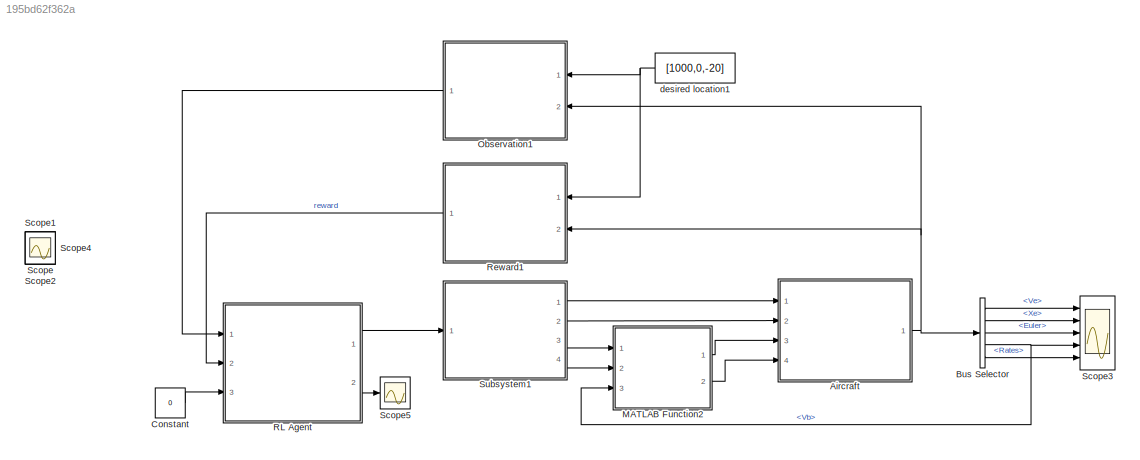
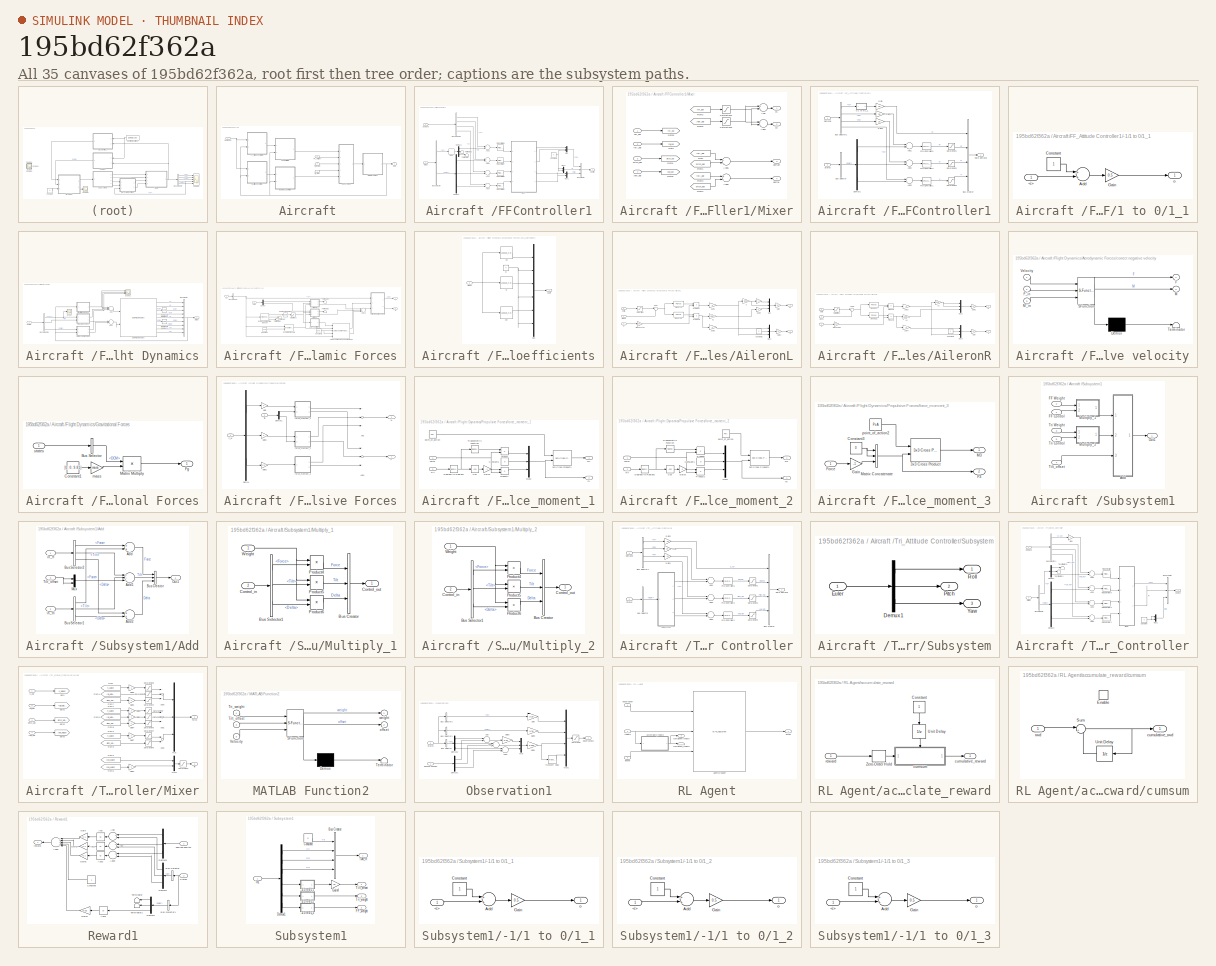
[diagram: thumbnail index - all 35 canvases of the model, root first then tree order]
MODEL slx_195bd62f362a
KIND model
CONFIG AbsTol = auto
CONFIG EnableMultiTasking = off
CONFIG FixedStep = auto
CONFIG MaxStep = auto
CONFIG MinStep = auto
CONFIG RelTol = 1e-3
CONFIG SampleTimeConstraint = Unconstrained
CONFIG Solver = VariableStepAuto
CONFIG SolverName = VariableStepAuto
CONFIG StartTime = 0.0
CONFIG StopTime = 200
BLOCK [SubSystem] Aircraft 
  Ports = [4, 1]
  RequestExecContextInheritance = off
BLOCK [Inport] Aircraft /Demands
  IconDisplay = Port number
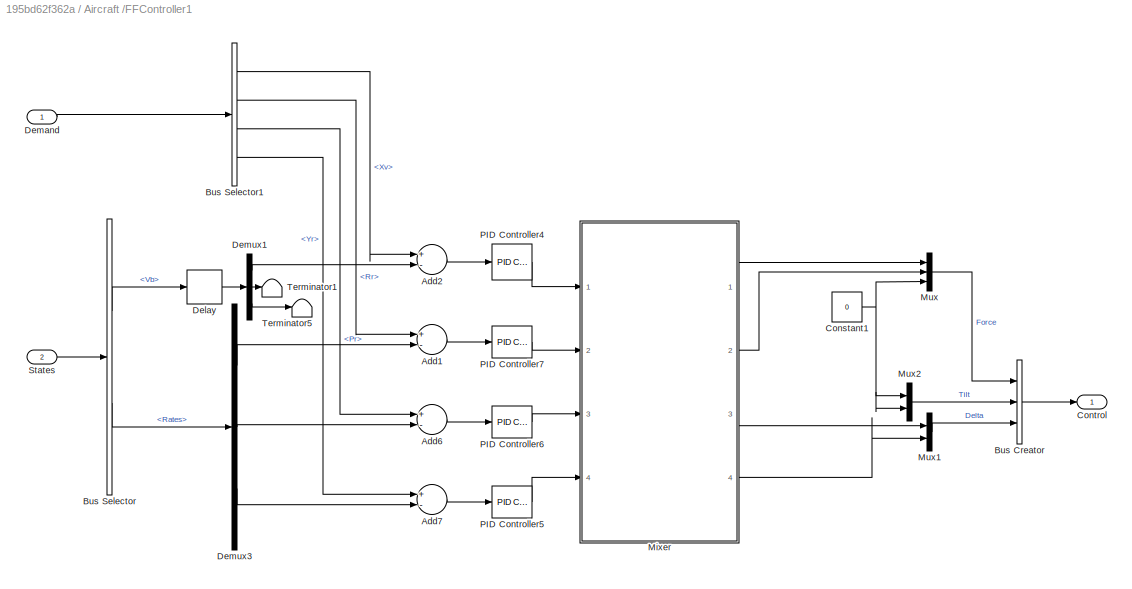
BLOCK [SubSystem] Aircraft /FFController1
  Ports = [2, 1]
  RequestExecContextInheritance = off
BLOCK [Sum] Aircraft /FFController1/Add1
  InputSameDT = off
  Inputs = +-
  OutDataTypeStr = Inherit: Inherit via internal rule
  Ports = [2, 1]
  SaturateOnIntegerOverflow = off
BLOCK [Sum] Aircraft /FFController1/Add2
  InputSameDT = off
  Inputs = +-
  OutDataTypeStr = Inherit: Inherit via internal rule
  Ports = [2, 1]
  SaturateOnIntegerOverflow = off
BLOCK [Sum] Aircraft /FFController1/Add6
  InputSameDT = off
  Inputs = +-
  OutDataTypeStr = Inherit: Inherit via internal rule
  Ports = [2, 1]
  SaturateOnIntegerOverflow = off
BLOCK [Sum] Aircraft /FFController1/Add7
  InputSameDT = off
  Inputs = +-
  OutDataTypeStr = Inherit: Inherit via internal rule
  Ports = [2, 1]
  SaturateOnIntegerOverflow = off
BLOCK [BusCreator] Aircraft /FFController1/Bus Creator
  DisplayOption = bar
  InheritFromInputs = on
  Inputs = 3
  Ports = [3, 1]
BLOCK [BusSelector] Aircraft /FFController1/Bus Selector
  OutputAsBus = off
  OutputSignals = Vb,Rates
  Ports = [1, 2]
BLOCK [BusSelector] Aircraft /FFController1/Bus Selector1
  OutputAsBus = off
  OutputSignals = Xv,Rr,Pr,Yr
  Ports = [1, 4]
BLOCK [Constant] Aircraft /FFController1/Constant1
  Value = 0
BLOCK [Outport] Aircraft /FFController1/Control
  IconDisplay = Port number
BLOCK [Delay] Aircraft /FFController1/Delay
  DelayLength = 1
  InitialCondition = 0
  InputPortMap = u0
  Ports = [1, 1]
BLOCK [Inport] Aircraft /FFController1/Demand
  IconDisplay = Port number
BLOCK [Demux] Aircraft /FFController1/Demux1
  DisplayOption = bar
  Outputs = 3
  Ports = [1, 3]
BLOCK [Demux] Aircraft /FFController1/Demux3
  DisplayOption = bar
  Outputs = 3
  Ports = [1, 3]
BLOCK [SubSystem] Aircraft /FFController1/Mixer
  Ports = [4, 4]
  RequestExecContextInheritance = off
BLOCK [Sum] Aircraft /FFController1/Mixer/Add
  InputSameDT = off
  OutDataTypeStr = Inherit: Inherit via internal rule
  Ports = [2, 1]
  SaturateOnIntegerOverflow = off
BLOCK [Sum] Aircraft /FFController1/Mixer/Add1
  InputSameDT = off
  Inputs = -+
  OutDataTypeStr = Inherit: Inherit via internal rule
  Ports = [2, 1]
  SaturateOnIntegerOverflow = off
BLOCK [Sum] Aircraft /FFController1/Mixer/Add5
  InputSameDT = off
  Inputs = --
  OutDataTypeStr = Inherit: Inherit via internal rule
  Ports = [2, 1]
  SaturateOnIntegerOverflow = off
BLOCK [Sum] Aircraft /FFController1/Mixer/Add6
  InputSameDT = off
  Inputs = +-
  OutDataTypeStr = Inherit: Inherit via internal rule
  Ports = [2, 1]
  SaturateOnIntegerOverflow = off
BLOCK [Outport] Aircraft /FFController1/Mixer/F1
  IconDisplay = Port number
BLOCK [Outport] Aircraft /FFController1/Mixer/F2
  IconDisplay = Port number
  Port = 2
BLOCK [From] Aircraft /FFController1/Mixer/From
  GotoTag = roll_adj
BLOCK [From] Aircraft /FFController1/Mixer/From1
  GotoTag = pitch_adj
BLOCK [From] Aircraft /FFController1/Mixer/From2
  GotoTag = thr_adj
BLOCK [From] Aircraft /FFController1/Mixer/From3
  GotoTag = roll_adj
BLOCK [From] Aircraft /FFController1/Mixer/From4
  GotoTag = pitch_adj
BLOCK [From] Aircraft /FFController1/Mixer/From6
  GotoTag = yaw_adj
BLOCK [Goto] Aircraft /FFController1/Mixer/Goto
  GotoTag = roll_adj
BLOCK [Goto] Aircraft /FFController1/Mixer/Goto1
  GotoTag = pitch_adj
BLOCK [Goto] Aircraft /FFController1/Mixer/Goto2
  GotoTag = yaw_adj
BLOCK [Goto] Aircraft /FFController1/Mixer/Goto3
  GotoTag = thr_adj
BLOCK [Saturate] Aircraft /FFController1/Mixer/Saturation1
  InputPortMap = u0
  LowerLimit = 0
  Ports = [1, 1]
  UpperLimit = 0.8
  ZeroCross = off
BLOCK [Saturate] Aircraft /FFController1/Mixer/Saturation2
  InputPortMap = u0
  LowerLimit = 0
  Ports = [1, 1]
  UpperLimit = 0.2
  ZeroCross = off
BLOCK [Outport] Aircraft /FFController1/Mixer/deltaL
  IconDisplay = Port number
  Port = 4
BLOCK [Outport] Aircraft /FFController1/Mixer/deltaR
  IconDisplay = Port number
  Port = 3
BLOCK [Inport] Aircraft /FFController1/Mixer/pitch_adj
  IconDisplay = Port number
  Port = 3
BLOCK [Inport] Aircraft /FFController1/Mixer/roll_adj
  IconDisplay = Port number
  Port = 2
BLOCK [Inport] Aircraft /FFController1/Mixer/vel_adj
  IconDisplay = Port number
BLOCK [Inport] Aircraft /FFController1/Mixer/yaw_adj
  IconDisplay = Port number
  Port = 4
BLOCK [Mux] Aircraft /FFController1/Mux
  DisplayOption = bar
  Inputs = 3
  Ports = [3, 1]
BLOCK [Mux] Aircraft /FFController1/Mux1
  DisplayOption = bar
  Inputs = 2
  Ports = [2, 1]
BLOCK [Mux] Aircraft /FFController1/Mux2
  DisplayOption = bar
  Inputs = 2
  Ports = [2, 1]
BLOCK [Reference] Aircraft /FFController1/PID Controller4  REF=simulink/Continuous/PID Controller
  Ports = [1, 1]
  SourceBlock = simulink/Continuous/PID Controller
  SourceProductBaseCode = SL
  SourceProductName = Simulink
  SourceType = PID 1dof
BLOCK [Reference] Aircraft /FFController1/PID Controller5  REF=simulink/Continuous/PID Controller
  Ports = [1, 1]
  SourceBlock = simulink/Continuous/PID Controller
  SourceProductBaseCode = SL
  SourceProductName = Simulink
  SourceType = PID 1dof
BLOCK [Reference] Aircraft /FFController1/PID Controller6  REF=simulink/Continuous/PID Controller
  Ports = [1, 1]
  SourceBlock = simulink/Continuous/PID Controller
  SourceProductBaseCode = SL
  SourceProductName = Simulink
  SourceType = PID 1dof
BLOCK [Reference] Aircraft /FFController1/PID Controller7  REF=simulink/Continuous/PID Controller
  Ports = [1, 1]
  SourceBlock = simulink/Continuous/PID Controller
  SourceProductBaseCode = SL
  SourceProductName = Simulink
  SourceType = PID 1dof
BLOCK [Inport] Aircraft /FFController1/States 
  IconDisplay = Port number
  Port = 2
BLOCK [Terminator] Aircraft /FFController1/Terminator1
BLOCK [Terminator] Aircraft /FFController1/Terminator5
BLOCK [SubSystem] Aircraft /FF_Attitude Controller1
  Ports = [2, 1]
  RequestExecContextInheritance = off
BLOCK [SubSystem] Aircraft /FF_Attitude Controller1/-1//1 to 0//1_1
  Ports = [1, 1]
  RequestExecContextInheritance = off
BLOCK [Inport] Aircraft /FF_Attitude Controller1/-1//1 to 0//1_1/<i>
  IconDisplay = Port number
BLOCK [Sum] Aircraft /FF_Attitude Controller1/-1//1 to 0//1_1/Add
  InputSameDT = off
  OutDataTypeStr = Inherit: Inherit via internal rule
  Ports = [2, 1]
  SaturateOnIntegerOverflow = off
BLOCK [Constant] Aircraft /FF_Attitude Controller1/-1//1 to 0//1_1/Constant
BLOCK [Gain] Aircraft /FF_Attitude Controller1/-1//1 to 0//1_1/Gain
  Gain = 0.5
  OutDataTypeStr = Inherit: Inherit via internal rule
  ParamDataTypeStr = Inherit: Inherit via internal rule
  SaturateOnIntegerOverflow = off
BLOCK [Outport] Aircraft /FF_Attitude Controller1/-1//1 to 0//1_1/o
  IconDisplay = Port number
BLOCK [Sum] Aircraft /FF_Attitude Controller1/Add1
  InputSameDT = off
  Inputs = +-
  OutDataTypeStr = Inherit: Inherit via internal rule
  Ports = [2, 1]
  SaturateOnIntegerOverflow = off
BLOCK [Sum] Aircraft /FF_Attitude Controller1/Add2
  InputSameDT = off
  Inputs = +-
  OutDataTypeStr = Inherit: Inherit via internal rule
  Ports = [2, 1]
  SaturateOnIntegerOverflow = off
BLOCK [Sum] Aircraft /FF_Attitude Controller1/Add3
  InputSameDT = off
  Inputs = +-
  OutDataTypeStr = Inherit: Inherit via internal rule
  Ports = [2, 1]
  SaturateOnIntegerOverflow = off
BLOCK [BusCreator] Aircraft /FF_Attitude Controller1/Bus Creator
  DisplayOption = bar
  InheritFromInputs = on
  Inputs = 4
  Ports = [4, 1]
BLOCK [BusSelector] Aircraft /FF_Attitude Controller1/Bus Selector
  OutputAsBus = off
  OutputSignals = Euler
  Ports = [1, 1]
BLOCK [BusSelector] Aircraft /FF_Attitude Controller1/Bus Selector1
  OutputAsBus = off
  OutputSignals = Xv,Rd,Pd,Yd
  Ports = [1, 4]
BLOCK [Inport] Aircraft /FF_Attitude Controller1/Demand 
  IconDisplay = Port number
BLOCK [Demux] Aircraft /FF_Attitude Controller1/Demux1
  DisplayOption = bar
  Outputs = 3
  Ports = [1, 3]
BLOCK [Gain] Aircraft /FF_Attitude Controller1/Gain
  Gain = 25
  OutDataTypeStr = Inherit: Inherit via internal rule
  ParamDataTypeStr = Inherit: Inherit via internal rule
  SaturateOnIntegerOverflow = off
BLOCK [Gain] Aircraft /FF_Attitude Controller1/Gain1
  Gain = 25
  OutDataTypeStr = Inherit: Inherit via internal rule
  ParamDataTypeStr = Inherit: Inherit via internal rule
  SaturateOnIntegerOverflow = off
BLOCK [Gain] Aircraft /FF_Attitude Controller1/Gain2
  Gain = 25
  OutDataTypeStr = Inherit: Inherit via internal rule
  ParamDataTypeStr = Inherit: Inherit via internal rule
  SaturateOnIntegerOverflow = off
BLOCK [Reference] Aircraft /FF_Attitude Controller1/PID Controller1  REF=simulink/Continuous/PID Controller
  Ports = [1, 1]
  SourceBlock = simulink/Continuous/PID Controller
  SourceProductBaseCode = SL
  SourceProductName = Simulink
  SourceType = PID 1dof
BLOCK [Reference] Aircraft /FF_Attitude Controller1/PID Controller3  REF=simulink/Continuous/PID Controller
  Ports = [1, 1]
  SourceBlock = simulink/Continuous/PID Controller
  SourceProductBaseCode = SL
  SourceProductName = Simulink
  SourceType = PID 1dof
BLOCK [Reference] Aircraft /FF_Attitude Controller1/PID Controller5  REF=simulink/Continuous/PID Controller
  Ports = [1, 1]
  SourceBlock = simulink/Continuous/PID Controller
  SourceProductBaseCode = SL
  SourceProductName = Simulink
  SourceType = PID 1dof
BLOCK [Outport] Aircraft /FF_Attitude Controller1/Rate Demand
  IconDisplay = Port number
BLOCK [Saturate] Aircraft /FF_Attitude Controller1/Saturation1
  InputPortMap = u0
  LinearizeAsGain = off
  LowerLimit = -25
  Ports = [1, 1]
  UpperLimit = 25
BLOCK [Saturate] Aircraft /FF_Attitude Controller1/Saturation2
  InputPortMap = u0
  LinearizeAsGain = off
  LowerLimit = -15
  Ports = [1, 1]
  UpperLimit = 15
BLOCK [Saturate] Aircraft /FF_Attitude Controller1/Saturation3
  InputPortMap = u0
  LinearizeAsGain = off
  LowerLimit = -30
  Ports = [1, 1]
  UpperLimit = 30
BLOCK [Inport] Aircraft /FF_Attitude Controller1/States 
  IconDisplay = Port number
  Port = 2
BLOCK [Inport] Aircraft /FF_weight
  IconDisplay = Port number
  Port = 2
BLOCK [SubSystem] Aircraft /Flight Dynamics
  Ports = [1, 1]
  RequestExecContextInheritance = off
BLOCK [Reference] Aircraft /Flight Dynamics/6DOF (Euler Angles)  REF=shared6dof/6DOF (Euler Angles)
  Ports = [2, 9]
  SourceBlock = shared6dof/6DOF (Euler Angles)
  SourceProductBaseCode = AE
  SourceProductName = Aerospace Blockset
  SourceType = 6DOF EoM (Body Axis)
BLOCK [Sum] Aircraft /Flight Dynamics/Add
  InputSameDT = off
  Inputs = +++
  OutDataTypeStr = Inherit: Inherit via internal rule
  Ports = [3, 1]
  SaturateOnIntegerOverflow = off
BLOCK [Sum] Aircraft /Flight Dynamics/Add1
  InputSameDT = off
  OutDataTypeStr = Inherit: Inherit via internal rule
  Ports = [2, 1]
  SaturateOnIntegerOverflow = off
BLOCK [SubSystem] Aircraft /Flight Dynamics/Aerodynamic Forces
  Ports = [2, 2]
  RequestExecContextInheritance = off
BLOCK [Sum] Aircraft /Flight Dynamics/Aerodynamic Forces/Add13
  InputSameDT = off
  Inputs = +++
  OutDataTypeStr = Inherit: Inherit via internal rule
  Ports = [3, 1]
  SaturateOnIntegerOverflow = off
BLOCK [SubSystem] Aircraft /Flight Dynamics/Aerodynamic Forces/Aero_coefficients
  Ports = [1, 1]
  RequestExecContextInheritance = off
BLOCK [Lookup_n-D] Aircraft /Flight Dynamics/Aerodynamic Forces/Aero_coefficients/Cd
  BreakpointsForDimension1 = [-22\n-20\n-18\n-16\n-14\n-12\n-10\n-8\n-6\n-4\n-2\n0\n2\n4\n6\n8\n10\n12\n14\n16\n18\n20\n22]
  InternalRulePriority = Speed
  NumberOfTableDimensions = 1
  Ports = [1, 1]
  RndMeth = Simplest
  Table = [0.392965675000000\n0.341758938000000\n0.291869622000000\n0.243198735000000\n0.201122935000000\n0.162088921000000\n0.119255102000000\n0.0879271140000000\n0.0661394560000000\n0.0508236150000000\n0.0422907190000000\n0.0388286200000000\n0.0390186100000000\n0.0428645290000000\n0.0503231290000000\n0.0617672500000000\n0.0796637510000000\n0.103830904000000\n0.130929057000000\n0.163534014000000\n0.205122935000000\n0.273406040...<+25ch>
BLOCK [Constant] Aircraft /Flight Dynamics/Aerodynamic Forces/Aero_coefficients/Cl
  Value = 0
BLOCK [Lookup_n-D] Aircraft /Flight Dynamics/Aerodynamic Forces/Aero_coefficients/Cl 
  BreakpointsForDimension1 = [-22\n-20\n-18\n-16\n-14\n-12\n-10\n-8\n-6\n-4\n-2\n0\n2\n4\n6\n8\n10\n12\n14\n16\n18\n20\n22]
  InternalRulePriority = Speed
  NumberOfTableDimensions = 1
  Ports = [1, 1]
  RndMeth = Simplest
  Table = [-1.05304747000000\n-0.939866144000000\n-0.835877820000000\n-0.772327502000000\n-0.744091351000000\n-0.678260447000000\n-0.627152575000000\n-0.541724976000000\n-0.430579689000000\n-0.309313897000000\n-0.176928086000000\n-0.0384528670000000\n0.102475219000000\n0.243855685000000\n0.381506317000000\n0.522103984000000\n0.649275996000000\n0.776705539000000\n0.874480078000000\n0.954319728000000\n1.00194617500000\n0.97672155...<+26ch>
BLOCK [Lookup_n-D] Aircraft /Flight Dynamics/Aerodynamic Forces/Aero_coefficients/Cm
  BreakpointsForDimension1 = [-22\n-20\n-18\n-16\n-14\n-12\n-10\n-8\n-6\n-4\n-2\n0\n2\n4\n6\n8\n10\n12\n14\n16\n18\n20\n22]
  InternalRulePriority = Speed
  NumberOfTableDimensions = 1
  Ports = [1, 1]
  RndMeth = Simplest
  Table = [-0.0374352130000000\n-0.0346318370000000\n-0.0299414270000000\n-0.0257262990000000\n-0.0215954230000000\n-0.0114725440000000\n0.0141471030000000\n0.0288031780000000\n0.0376529660000000\n0.0436490160000000\n0.0450585630000000\n0.0429304540000000\n0.0377977440000000\n0.0321134120000000\n0.0258494080000000\n0.0177846340000000\n0.0110621100000000\n0.00550642000000000\n0.00100000000000000\n-0.00339548100000000\n0.0115161...<+48ch>
BLOCK [Outport] Aircraft /Flight Dynamics/Aerodynamic Forces/Aero_coefficients/Coeff
  IconDisplay = Port number
BLOCK [Mux] Aircraft /Flight Dynamics/Aerodynamic Forces/Aero_coefficients/Mux
  DisplayOption = bar
  Inputs = 6
  Ports = [6, 1]
BLOCK [Inport] Aircraft /Flight Dynamics/Aerodynamic Forces/Aero_coefficients/alpha
  IconDisplay = Port number
BLOCK [Reference] Aircraft /Flight Dynamics/Aerodynamic Forces/Aerodynamic Forces and Moments   REF=aerolibadyn/Aerodynamic
Forces and Moments 
  Ports = [5, 2]
  SourceBlock = aerolibadyn/Aerodynamic\nForces and Moments
  SourceProductBaseCode = AE
  SourceProductName = Aerospace Blockset
  SourceType = Aerodynamic Forces and Moments
BLOCK [SubSystem] Aircraft /Flight Dynamics/Aerodynamic Forces/AileronL
  Ports = [3, 2]
  RequestExecContextInheritance = off
BLOCK [Gain] Aircraft /Flight Dynamics/Aerodynamic Forces/AileronL/ 
  Gain = -1
  OutDataTypeStr = Inherit: Inherit via internal rule
  ParamDataTypeStr = Inherit: Inherit via internal rule
  SaturateOnIntegerOverflow = off
BLOCK [Gain] Aircraft /Flight Dynamics/Aerodynamic Forces/AileronL/AilevonArea
  Gain = .05
  OutDataTypeStr = Inherit: Inherit via internal rule
  ParamDataTypeStr = Inherit: Inherit via internal rule
  SaturateOnIntegerOverflow = off
BLOCK [Constant] Aircraft /Flight Dynamics/Aerodynamic Forces/AileronL/Constant1
  Value = 0
BLOCK [Outport] Aircraft /Flight Dynamics/Aerodynamic Forces/AileronL/F
  IconDisplay = Port number
BLOCK [Gain] Aircraft /Flight Dynamics/Aerodynamic Forces/AileronL/Gain
  Gain = 0.5
  OutDataTypeStr = Inherit: Inherit via internal rule
  ParamDataTypeStr = Inherit: Inherit via internal rule
  SaturateOnIntegerOverflow = off
BLOCK [Gain] Aircraft /Flight Dynamics/Aerodynamic Forces/AileronL/Gain1
  Gain = 0.5
  OutDataTypeStr = Inherit: Inherit via internal rule
  ParamDataTypeStr = Inherit: Inherit via internal rule
  SaturateOnIntegerOverflow = off
BLOCK [Outport] Aircraft /Flight Dynamics/Aerodynamic Forces/AileronL/M
  IconDisplay = Port number
  Port = 2
BLOCK [Mux] Aircraft /Flight Dynamics/Aerodynamic Forces/AileronL/Mux
  DisplayOption = bar
  Inputs = 3
  Ports = [3, 1]
BLOCK [Mux] Aircraft /Flight Dynamics/Aerodynamic Forces/AileronL/Mux1
  DisplayOption = bar
  Inputs = 3
  Ports = [3, 1]
BLOCK [Product] Aircraft /Flight Dynamics/Aerodynamic Forces/AileronL/Product
  InputSameDT = off
  OutDataTypeStr = Inherit: Inherit via internal rule
  Ports = [2, 1]
  RndMeth = Floor
  SaturateOnIntegerOverflow = off
BLOCK [Product] Aircraft /Flight Dynamics/Aerodynamic Forces/AileronL/Product1
  InputSameDT = off
  OutDataTypeStr = Inherit: Inherit via internal rule
  Ports = [2, 1]
  RndMeth = Floor
  SaturateOnIntegerOverflow = off
BLOCK [Saturate] Aircraft /Flight Dynamics/Aerodynamic Forces/AileronL/Saturation
  InputPortMap = u0
  LowerLimit = -20
  Ports = [1, 1]
  UpperLimit = 20
  ZeroCross = off
BLOCK [Sum] Aircraft /Flight Dynamics/Aerodynamic Forces/AileronL/Sum
  IconShape = round
  InputSameDT = off
  Inputs = |++
  OutDataTypeStr = Inherit: Inherit via internal rule
  Ports = [2, 1]
  SaturateOnIntegerOverflow = off
BLOCK [Gain] Aircraft /Flight Dynamics/Aerodynamic Forces/AileronL/a
  Gain = .505
  OutDataTypeStr = Inherit: Inherit via internal rule
  ParamDataTypeStr = Inherit: Inherit via internal rule
  SaturateOnIntegerOverflow = off
BLOCK [Gain] Aircraft /Flight Dynamics/Aerodynamic Forces/AileronL/a1
  Gain = .505
  OutDataTypeStr = Inherit: Inherit via internal rule
  ParamDataTypeStr = Inherit: Inherit via internal rule
  SaturateOnIntegerOverflow = off
BLOCK [Inport] Aircraft /Flight Dynamics/Aerodynamic Forces/AileronL/alpha
  IconDisplay = Port number
  Port = 2
BLOCK [Polyval] Aircraft /Flight Dynamics/Aerodynamic Forces/AileronL/alpha-CD
  Coefs = [2e-5 2e-8 -5e-5 -4e-7 .0119]
BLOCK [Polyval] Aircraft /Flight Dynamics/Aerodynamic Forces/AileronL/alpha-CL
  Coefs = [0.0987 0]
BLOCK [Inport] Aircraft /Flight Dynamics/Aerodynamic Forces/AileronL/delta
  IconDisplay = Port number
BLOCK [Gain] Aircraft /Flight Dynamics/Aerodynamic Forces/AileronL/gain1
  Gain = -1
  OutDataTypeStr = Inherit: Inherit via internal rule
  ParamDataTypeStr = Inherit: Inherit via internal rule
  SaturateOnIntegerOverflow = off
BLOCK [Gain] Aircraft /Flight Dynamics/Aerodynamic Forces/AileronL/gain2
  Gain = -1
  OutDataTypeStr = Inherit: Inherit via internal rule
  ParamDataTypeStr = Inherit: Inherit via internal rule
  SaturateOnIntegerOverflow = off
BLOCK [Gain] Aircraft /Flight Dynamics/Aerodynamic Forces/AileronL/gain4
  Gain = -1
  OutDataTypeStr = Inherit: Inherit via internal rule
  ParamDataTypeStr = Inherit: Inherit via internal rule
  SaturateOnIntegerOverflow = off
BLOCK [Inport] Aircraft /Flight Dynamics/Aerodynamic Forces/AileronL/q
  IconDisplay = Port number
  Port = 3
BLOCK [SubSystem] Aircraft /Flight Dynamics/Aerodynamic Forces/AileronR
  Ports = [3, 2]
  RequestExecContextInheritance = off
BLOCK [Gain] Aircraft /Flight Dynamics/Aerodynamic Forces/AileronR/AilevonArea
  Gain = .05
  OutDataTypeStr = Inherit: Inherit via internal rule
  ParamDataTypeStr = Inherit: Inherit via internal rule
  SaturateOnIntegerOverflow = off
BLOCK [Constant] Aircraft /Flight Dynamics/Aerodynamic Forces/AileronR/Constant2
  Value = 0
BLOCK [Outport] Aircraft /Flight Dynamics/Aerodynamic Forces/AileronR/F
  IconDisplay = Port number
BLOCK [Gain] Aircraft /Flight Dynamics/Aerodynamic Forces/AileronR/Gain
  Gain = 0.5
  OutDataTypeStr = Inherit: Inherit via internal rule
  ParamDataTypeStr = Inherit: Inherit via internal rule
  SaturateOnIntegerOverflow = off
BLOCK [Gain] Aircraft /Flight Dynamics/Aerodynamic Forces/AileronR/Gain1
  Gain = 0.5
  OutDataTypeStr = Inherit: Inherit via internal rule
  ParamDataTypeStr = Inherit: Inherit via internal rule
  SaturateOnIntegerOverflow = off
BLOCK [Outport] Aircraft /Flight Dynamics/Aerodynamic Forces/AileronR/M
  IconDisplay = Port number
  Port = 2
BLOCK [Mux] Aircraft /Flight Dynamics/Aerodynamic Forces/AileronR/Mux2
  DisplayOption = bar
  Inputs = 3
  Ports = [3, 1]
BLOCK [Mux] Aircraft /Flight Dynamics/Aerodynamic Forces/AileronR/Mux3
  DisplayOption = bar
  Inputs = 3
  Ports = [3, 1]
BLOCK [Product] Aircraft /Flight Dynamics/Aerodynamic Forces/AileronR/Product2
  InputSameDT = off
  OutDataTypeStr = Inherit: Inherit via internal rule
  Ports = [2, 1]
  RndMeth = Floor
  SaturateOnIntegerOverflow = off
BLOCK [Product] Aircraft /Flight Dynamics/Aerodynamic Forces/AileronR/Product3
  InputSameDT = off
  OutDataTypeStr = Inherit: Inherit via internal rule
  Ports = [2, 1]
  RndMeth = Floor
  SaturateOnIntegerOverflow = off
BLOCK [Saturate] Aircraft /Flight Dynamics/Aerodynamic Forces/AileronR/Saturation1
  InputPortMap = u0
  LowerLimit = -20
  Ports = [1, 1]
  UpperLimit = 20
  ZeroCross = off
BLOCK [Sum] Aircraft /Flight Dynamics/Aerodynamic Forces/AileronR/Sum1
  IconShape = round
  InputSameDT = off
  Inputs = |++
  OutDataTypeStr = Inherit: Inherit via internal rule
  Ports = [2, 1]
  SaturateOnIntegerOverflow = off
BLOCK [Gain] Aircraft /Flight Dynamics/Aerodynamic Forces/AileronR/a2
  Gain = .505
  OutDataTypeStr = Inherit: Inherit via internal rule
  ParamDataTypeStr = Inherit: Inherit via internal rule
  SaturateOnIntegerOverflow = off
BLOCK [Gain] Aircraft /Flight Dynamics/Aerodynamic Forces/AileronR/a3
  Gain = .505
  OutDataTypeStr = Inherit: Inherit via internal rule
  ParamDataTypeStr = Inherit: Inherit via internal rule
  SaturateOnIntegerOverflow = off
BLOCK [Inport] Aircraft /Flight Dynamics/Aerodynamic Forces/AileronR/alpha
  IconDisplay = Port number
  Port = 2
BLOCK [Polyval] Aircraft /Flight Dynamics/Aerodynamic Forces/AileronR/alpha-CD1
  Coefs = [2e-5 2e-8 -5e-5 -4e-7 .0119]
BLOCK [Polyval] Aircraft /Flight Dynamics/Aerodynamic Forces/AileronR/alpha-CL1
  Coefs = [0.0987 0]
BLOCK [Inport] Aircraft /Flight Dynamics/Aerodynamic Forces/AileronR/delta
  IconDisplay = Port number
BLOCK [Gain] Aircraft /Flight Dynamics/Aerodynamic Forces/AileronR/gain3
  Gain = -1
  OutDataTypeStr = Inherit: Inherit via internal rule
  ParamDataTypeStr = Inherit: Inherit via internal rule
  SaturateOnIntegerOverflow = off
BLOCK [Gain] Aircraft /Flight Dynamics/Aerodynamic Forces/AileronR/gain4
  Gain = -1
  OutDataTypeStr = Inherit: Inherit via internal rule
  ParamDataTypeStr = Inherit: Inherit via internal rule
  SaturateOnIntegerOverflow = off
BLOCK [Inport] Aircraft /Flight Dynamics/Aerodynamic Forces/AileronR/q
  IconDisplay = Port number
  Port = 3
BLOCK [BusSelector] Aircraft /Flight Dynamics/Aerodynamic Forces/Bus Selector
  OutputAsBus = off
  OutputSignals = Vb
  Ports = [1, 1]
BLOCK [Constant] Aircraft /Flight Dynamics/Aerodynamic Forces/Constant
  Value = 1.225
BLOCK [Constant] Aircraft /Flight Dynamics/Aerodynamic Forces/Constant2
  Value = [0 0 0]
BLOCK [Demux] Aircraft /Flight Dynamics/Aerodynamic Forces/Demux
  DisplayOption = bar
  Outputs = 2
  Ports = [1, 2]
BLOCK [Reference] Aircraft /Flight Dynamics/Aerodynamic Forces/Dynamic Pressure  REF=aerolibasang/Dynamic Pressure
  Ports = [2, 1]
  SourceBlock = aerolibasang/Dynamic Pressure
  SourceProductBaseCode = AE
  SourceProductName = Aerospace Blockset
  SourceType = Dynamic Pressure
BLOCK [Outport] Aircraft /Flight Dynamics/Aerodynamic Forces/F
  IconDisplay = Port number
BLOCK [Reference] Aircraft /Flight Dynamics/Aerodynamic Forces/Incidence, Sideslip, & Airspeed  REF=aerolibasang/Incidence, Sideslip,
& Airspeed
  Ports = [1, 3]
  SourceBlock = aerolibasang/Incidence, Sideslip,\n& Airspeed
  SourceProductBaseCode = AE
  SourceProductName = Aerospace Blockset
  SourceType = Incidence,Sideslip,&Airspeed
BLOCK [Outport] Aircraft /Flight Dynamics/Aerodynamic Forces/M
  IconDisplay = Port number
  Port = 2
BLOCK [Reference] Aircraft /Flight Dynamics/Aerodynamic Forces/Radians to Degrees  REF=simulink_extras/Transformations/Radians
to Degrees
  Ports = [1, 1]
  SourceBlock = simulink_extras/Transformations/Radians\nto Degrees
  SourceProductBaseCode = SL
  SourceProductName = Simulink
  SourceType = RadiansToDegrees
BLOCK [Saturate] Aircraft /Flight Dynamics/Aerodynamic Forces/Saturation1
  InputPortMap = u0
  LowerLimit = -22
  Ports = [1, 1]
  UpperLimit = 22
  ZeroCross = off
BLOCK [Terminator] Aircraft /Flight Dynamics/Aerodynamic Forces/Terminator
BLOCK [Terminator] Aircraft /Flight Dynamics/Aerodynamic Forces/Terminator1
BLOCK [Terminator] Aircraft /Flight Dynamics/Aerodynamic Forces/Terminator2
BLOCK [Terminator] Aircraft /Flight Dynamics/Aerodynamic Forces/Terminator3
BLOCK [Inport] Aircraft /Flight Dynamics/Aerodynamic Forces/Vb
  IconDisplay = Port number
  Port = 2
BLOCK [SubSystem] Aircraft /Flight Dynamics/Aerodynamic Forces/correct negative velocity
  ErrorFcn = Stateflow.Translate.translate
  PermitHierarchicalResolution = ExplicitOnly
  Ports = [3, 2]
  RequestExecContextInheritance = off
  SFBlockType = MATLAB Function
  TreatAsAtomicUnit = on
BLOCK [Demux] Aircraft /Flight Dynamics/Aerodynamic Forces/correct negative velocity/ Demux 
  Outputs = 1
  Ports = [1, 1]
BLOCK [S-Function] Aircraft /Flight Dynamics/Aerodynamic Forces/correct negative velocity/ SFunction 
  EnableBusSupport = on
  FunctionName = sf_sfun
  PortCounts = [3 3]
  Ports = [3, 3]
  SFcnIsStateOwnerBlock = off
  SFunctionDeploymentMode = off
  Tag = Stateflow S-Function Transition 1
BLOCK [Terminator] Aircraft /Flight Dynamics/Aerodynamic Forces/correct negative velocity/ Terminator 
BLOCK [Outport] Aircraft /Flight Dynamics/Aerodynamic Forces/correct negative velocity/F
  IconDisplay = Port number
BLOCK [Inport] Aircraft /Flight Dynamics/Aerodynamic Forces/correct negative velocity/F_in
  IconDisplay = Port number
  Port = 2
BLOCK [Outport] Aircraft /Flight Dynamics/Aerodynamic Forces/correct negative velocity/M
  IconDisplay = Port number
  Port = 2
BLOCK [Inport] Aircraft /Flight Dynamics/Aerodynamic Forces/correct negative velocity/M_in
  IconDisplay = Port number
  Port = 3
BLOCK [Inport] Aircraft /Flight Dynamics/Aerodynamic Forces/correct negative velocity/Velocity
  IconDisplay = Port number
BLOCK [Inport] Aircraft /Flight Dynamics/Aerodynamic Forces/delta
  IconDisplay = Port number
BLOCK [BusCreator] Aircraft /Flight Dynamics/Bus Creator
  DisplayOption = bar
  InheritFromInputs = on
  Inputs = 9
  Ports = [9, 1]
BLOCK [BusSelector] Aircraft /Flight Dynamics/Bus Selector1
  OutputAsBus = off
  OutputSignals = Force,Tilt,Delta
  Ports = [1, 3]
BLOCK [Inport] Aircraft /Flight Dynamics/Control
  IconDisplay = Port number
BLOCK [SubSystem] Aircraft /Flight Dynamics/Gravitational Forces
  Ports = [1, 1]
  RequestExecContextInheritance = off
BLOCK [BusSelector] Aircraft /Flight Dynamics/Gravitational Forces/Bus Selector
  OutputAsBus = off
  OutputSignals = DCM
  Ports = [1, 1]
BLOCK [Constant] Aircraft /Flight Dynamics/Gravitational Forces/Constant1
  Value = [0; 0; 9.81]
BLOCK [Outport] Aircraft /Flight Dynamics/Gravitational Forces/Fg
  IconDisplay = Port number
BLOCK [Product] Aircraft /Flight Dynamics/Gravitational Forces/Matrix Multiply
  InputSameDT = off
  Multiplication = Matrix(*)
  OutDataTypeStr = Inherit: Inherit via internal rule
  Ports = [2, 1]
  RndMeth = Floor
  SaturateOnIntegerOverflow = off
BLOCK [Gain] Aircraft /Flight Dynamics/Gravitational Forces/mass
  Gain = mass
  OutDataTypeStr = Inherit: Inherit via internal rule
  ParamDataTypeStr = Inherit: Inherit via internal rule
  SaturateOnIntegerOverflow = off
BLOCK [Inport] Aircraft /Flight Dynamics/Gravitational Forces/states
  IconDisplay = Port number
BLOCK [SubSystem] Aircraft /Flight Dynamics/Propulsive Forces
  Ports = [2, 2]
  RequestExecContextInheritance = off
BLOCK [Sum] Aircraft /Flight Dynamics/Propulsive Forces/Add
  InputSameDT = off
  Inputs = +++
  OutDataTypeStr = Inherit: Inherit via internal rule
  Ports = [3, 1]
  SaturateOnIntegerOverflow = off
BLOCK [Sum] Aircraft /Flight Dynamics/Propulsive Forces/Add1
  InputSameDT = off
  Inputs = +++
  OutDataTypeStr = Inherit: Inherit via internal rule
  Ports = [3, 1]
  SaturateOnIntegerOverflow = off
BLOCK [Demux] Aircraft /Flight Dynamics/Propulsive Forces/Demux
  DisplayOption = bar
  Outputs = 3
  Ports = [1, 3]
BLOCK [Demux] Aircraft /Flight Dynamics/Propulsive Forces/Demux1
  DisplayOption = bar
  Outputs = 2
  Ports = [1, 2]
BLOCK [Outport] Aircraft /Flight Dynamics/Propulsive Forces/F
  IconDisplay = Port number
BLOCK [Inport] Aircraft /Flight Dynamics/Propulsive Forces/F_M 
  IconDisplay = Port number
BLOCK [Gain] Aircraft /Flight Dynamics/Propulsive Forces/Gain
  Gain = F
  OutDataTypeStr = Inherit: Inherit via internal rule
  ParamDataTypeStr = Inherit: Inherit via internal rule
  SaturateOnIntegerOverflow = off
BLOCK [Gain] Aircraft /Flight Dynamics/Propulsive Forces/Gain1
  Gain = F
  OutDataTypeStr = Inherit: Inherit via internal rule
  ParamDataTypeStr = Inherit: Inherit via internal rule
  SaturateOnIntegerOverflow = off
BLOCK [Gain] Aircraft /Flight Dynamics/Propulsive Forces/Gain2
  Gain = 2*F
  OutDataTypeStr = Inherit: Inherit via internal rule
  ParamDataTypeStr = Inherit: Inherit via internal rule
  SaturateOnIntegerOverflow = off
BLOCK [Outport] Aircraft /Flight Dynamics/Propulsive Forces/M
  IconDisplay = Port number
  Port = 2
BLOCK [Inport] Aircraft /Flight Dynamics/Propulsive Forces/Tilt
  IconDisplay = Port number
  Port = 2
BLOCK [SubSystem] Aircraft /Flight Dynamics/Propulsive Forces/force_moment_1
  Ports = [2, 2]
  RequestExecContextInheritance = off
BLOCK [Reference] Aircraft /Flight Dynamics/Propulsive Forces/force_moment_1/3x3 Cross Product1  REF=sharedutil/3x3 Cross Product
  Ports = [2, 1]
  SourceBlock = sharedutil/3x3 Cross Product
  SourceProductBaseCode = AE
  SourceProductName = Aerospace Blockset
  SourceType = CrossProduct
BLOCK [Constant] Aircraft /Flight Dynamics/Propulsive Forces/force_moment_1/Constant1
  Value = 0
BLOCK [Trigonometry] Aircraft /Flight Dynamics/Propulsive Forces/force_moment_1/Cos
  Operator = cos
  Ports = [1, 1]
BLOCK [Reference] Aircraft /Flight Dynamics/Propulsive Forces/force_moment_1/Degrees to Radians  REF=simulink_extras/Transformations/Degrees to
Radians
  Ports = [1, 1]
  SourceBlock = simulink_extras/Transformations/Degrees to\nRadians
  SourceProductBaseCode = SL
  SourceProductName = Simulink
  SourceType = DegreesToRadians
BLOCK [Outport] Aircraft /Flight Dynamics/Propulsive Forces/force_moment_1/F1 
  IconDisplay = Port number
  Port = 2
BLOCK [Inport] Aircraft /Flight Dynamics/Propulsive Forces/force_moment_1/Force
  IconDisplay = Port number
BLOCK [Gain] Aircraft /Flight Dynamics/Propulsive Forces/force_moment_1/Gain3
  Gain = -1
  OutDataTypeStr = Inherit: Inherit via internal rule
  ParamDataTypeStr = Inherit: Inherit via internal rule
  SaturateOnIntegerOverflow = off
BLOCK [Outport] Aircraft /Flight Dynamics/Propulsive Forces/force_moment_1/M1
  IconDisplay = Port number
BLOCK [Mux] Aircraft /Flight Dynamics/Propulsive Forces/force_moment_1/Mux2
  DisplayOption = bar
  Inputs = 3
  Ports = [3, 1]
BLOCK [Product] Aircraft /Flight Dynamics/Propulsive Forces/force_moment_1/Product
  InputSameDT = off
  OutDataTypeStr = Inherit: Inherit via internal rule
  Ports = [2, 1]
  RndMeth = Floor
  SaturateOnIntegerOverflow = off
BLOCK [Product] Aircraft /Flight Dynamics/Propulsive Forces/force_moment_1/Product1
  InputSameDT = off
  OutDataTypeStr = Inherit: Inherit via internal rule
  Ports = [2, 1]
  RndMeth = Floor
  SaturateOnIntegerOverflow = off
BLOCK [Inport] Aircraft /Flight Dynamics/Propulsive Forces/force_moment_1/Tilt
  IconDisplay = Port number
  Port = 2
BLOCK [Trigonometry] Aircraft /Flight Dynamics/Propulsive Forces/force_moment_1/Trigonometric Function
  Ports = [1, 1]
BLOCK [Constant] Aircraft /Flight Dynamics/Propulsive Forces/force_moment_1/point_of_action
  Value = PoA
  VectorParams1D = off
BLOCK [SubSystem] Aircraft /Flight Dynamics/Propulsive Forces/force_moment_2
  Ports = [2, 2]
  RequestExecContextInheritance = off
BLOCK [Reference] Aircraft /Flight Dynamics/Propulsive Forces/force_moment_2/3x3 Cross Product1  REF=sharedutil/3x3 Cross Product
  Ports = [2, 1]
  SourceBlock = sharedutil/3x3 Cross Product
  SourceProductBaseCode = AE
  SourceProductName = Aerospace Blockset
  SourceType = CrossProduct
BLOCK [Constant] Aircraft /Flight Dynamics/Propulsive Forces/force_moment_2/Constant1
  Value = 0
BLOCK [Trigonometry] Aircraft /Flight Dynamics/Propulsive Forces/force_moment_2/Cos
  Operator = cos
  Ports = [1, 1]
BLOCK [Reference] Aircraft /Flight Dynamics/Propulsive Forces/force_moment_2/Degrees to Radians  REF=simulink_extras/Transformations/Degrees to
Radians
  Ports = [1, 1]
  SourceBlock = simulink_extras/Transformations/Degrees to\nRadians
  SourceProductBaseCode = SL
  SourceProductName = Simulink
  SourceType = DegreesToRadians
BLOCK [Outport] Aircraft /Flight Dynamics/Propulsive Forces/force_moment_2/F2 
  IconDisplay = Port number
  Port = 2
BLOCK [Inport] Aircraft /Flight Dynamics/Propulsive Forces/force_moment_2/Force
  IconDisplay = Port number
BLOCK [Gain] Aircraft /Flight Dynamics/Propulsive Forces/force_moment_2/Gain3
  Gain = -1
  OutDataTypeStr = Inherit: Inherit via internal rule
  ParamDataTypeStr = Inherit: Inherit via internal rule
  SaturateOnIntegerOverflow = off
BLOCK [Outport] Aircraft /Flight Dynamics/Propulsive Forces/force_moment_2/M2
  IconDisplay = Port number
BLOCK [Mux] Aircraft /Flight Dynamics/Propulsive Forces/force_moment_2/Mux2
  DisplayOption = bar
  Inputs = 3
  Ports = [3, 1]
BLOCK [Product] Aircraft /Flight Dynamics/Propulsive Forces/force_moment_2/Product
  InputSameDT = off
  OutDataTypeStr = Inherit: Inherit via internal rule
  Ports = [2, 1]
  RndMeth = Floor
  SaturateOnIntegerOverflow = off
BLOCK [Product] Aircraft /Flight Dynamics/Propulsive Forces/force_moment_2/Product1
  InputSameDT = off
  OutDataTypeStr = Inherit: Inherit via internal rule
  Ports = [2, 1]
  RndMeth = Floor
  SaturateOnIntegerOverflow = off
BLOCK [Inport] Aircraft /Flight Dynamics/Propulsive Forces/force_moment_2/Tilt
  IconDisplay = Port number
  Port = 2
BLOCK [Trigonometry] Aircraft /Flight Dynamics/Propulsive Forces/force_moment_2/Trigonometric Function
  Ports = [1, 1]
BLOCK [Constant] Aircraft /Flight Dynamics/Propulsive Forces/force_moment_2/point_of_action
  Value = PoA
  VectorParams1D = off
BLOCK [SubSystem] Aircraft /Flight Dynamics/Propulsive Forces/force_moment_3
  Ports = [1, 2]
  RequestExecContextInheritance = off
BLOCK [Reference] Aircraft /Flight Dynamics/Propulsive Forces/force_moment_3/3x3 Cross Product  REF=sharedutil/3x3 Cross Product
  Ports = [2, 1]
  SourceBlock = sharedutil/3x3 Cross Product
  SourceProductBaseCode = AE
  SourceProductName = Aerospace Blockset
  SourceType = CrossProduct
BLOCK [Constant] Aircraft /Flight Dynamics/Propulsive Forces/force_moment_3/Constant3
  Value = 0
BLOCK [Outport] Aircraft /Flight Dynamics/Propulsive Forces/force_moment_3/F3
  IconDisplay = Port number
  Port = 2
BLOCK [Inport] Aircraft /Flight Dynamics/Propulsive Forces/force_moment_3/Force
  IconDisplay = Port number
BLOCK [Gain] Aircraft /Flight Dynamics/Propulsive Forces/force_moment_3/Gain
  Gain = -1
  OutDataTypeStr = Inherit: Inherit via internal rule
  ParamDataTypeStr = Inherit: Inherit via internal rule
  SaturateOnIntegerOverflow = off
BLOCK [Outport] Aircraft /Flight Dynamics/Propulsive Forces/force_moment_3/M3
  IconDisplay = Port number
BLOCK [Concatenate] Aircraft /Flight Dynamics/Propulsive Forces/force_moment_3/Matrix Concatenate
  ConcatenateDimension = 2
  NumInputs = 3
  Ports = [3, 1]
BLOCK [Constant] Aircraft /Flight Dynamics/Propulsive Forces/force_moment_3/point_of_action2
  Value = PoA
  VectorParams1D = off
BLOCK [Reference] Aircraft /Flight Dynamics/Radians to Degrees1  REF=simulink_extras/Transformations/Radians
to Degrees
  Ports = [1, 1]
  SourceBlock = simulink_extras/Transformations/Radians\nto Degrees
  SourceProductBaseCode = SL
  SourceProductName = Simulink
  SourceType = RadiansToDegrees
BLOCK [Reference] Aircraft /Flight Dynamics/Radians to Degrees2  REF=simulink_extras/Transformations/Radians
to Degrees
  Ports = [1, 1]
  SourceBlock = simulink_extras/Transformations/Radians\nto Degrees
  SourceProductBaseCode = SL
  SourceProductName = Simulink
  SourceType = RadiansToDegrees
BLOCK [Scope] Aircraft /Flight Dynamics/Scope
  Floating = off
  NumInputPorts = 1
  Ports = [1]
  ScopeSpecificationString = Simulink.scopes.TimeScopeBlockCfg('CurrentConfiguration', extmgr.ConfigurationSet(extmgr.Configuration('Core','General UI',true),extmgr.Configuration('Core','Source UI',true),extmgr.Configuration('Sources','WiredSimulink',true),extmgr.Configuration('Visuals','Time Domain',true,'SerializedDisplays',{struct('MinYLimReal','-0.04805','MaxYLimReal','0.1644','YLabelReal','','MinYLimMag','0.00000','MaxYL...<+1493ch>
BLOCK [Scope] Aircraft /Flight Dynamics/Scope1
  Floating = off
  NumInputPorts = 3
  Ports = [3]
  ScopeSpecificationString = Simulink.scopes.TimeScopeBlockCfg('CurrentConfiguration', extmgr.ConfigurationSet(extmgr.Configuration('Core','General UI',true),extmgr.Configuration('Core','Source UI',true),extmgr.Configuration('Sources','WiredSimulink',true,'DataLoggingVariableName','ScopeData2'),extmgr.Configuration('Visuals','Time Domain',true,'SerializedDisplays',{struct('MinYLimReal','-81.06295','MaxYLimReal','43.48746','YL...<+1861ch>
BLOCK [Outport] Aircraft /Flight Dynamics/States
  IconDisplay = Port number
BLOCK [Outport] Aircraft /Out1
  IconDisplay = Port number
BLOCK [SubSystem] Aircraft /Subsystem1
  Ports = [5, 1]
  RequestExecContextInheritance = off
BLOCK [SubSystem] Aircraft /Subsystem1/Add
  Ports = [3, 1]
  RequestExecContextInheritance = off
BLOCK [Sum] Aircraft /Subsystem1/Add/Add
  InputSameDT = off
  OutDataTypeStr = Inherit: Inherit via internal rule
  Ports = [2, 1]
  SaturateOnIntegerOverflow = off
BLOCK [Sum] Aircraft /Subsystem1/Add/Add1
  InputSameDT = off
  Inputs = +++
  OutDataTypeStr = Inherit: Inherit via internal rule
  Ports = [3, 1]
  SaturateOnIntegerOverflow = off
BLOCK [Sum] Aircraft /Subsystem1/Add/Add2
  InputSameDT = off
  OutDataTypeStr = Inherit: Inherit via internal rule
  Ports = [2, 1]
  SaturateOnIntegerOverflow = off
BLOCK [BusCreator] Aircraft /Subsystem1/Add/Bus Creator
  DisplayOption = bar
  InheritFromInputs = on
  Inputs = 3
  Ports = [3, 1]
BLOCK [BusSelector] Aircraft /Subsystem1/Add/Bus Selector1
  OutputAsBus = off
  OutputSignals = Force,Tilt,Delta
  Ports = [1, 3]
BLOCK [BusSelector] Aircraft /Subsystem1/Add/Bus Selector2
  OutputAsBus = off
  OutputSignals = Force,Tilt,Delta
  Ports = [1, 3]
BLOCK [Mux] Aircraft /Subsystem1/Add/Mux
  DisplayOption = bar
  Inputs = 2
  Ports = [2, 1]
BLOCK [Outport] Aircraft /Subsystem1/Add/Out1
  IconDisplay = Port number
BLOCK [Inport] Aircraft /Subsystem1/Add/Tilt_offset
  IconDisplay = Port number
  Port = 3
BLOCK [Inport] Aircraft /Subsystem1/Add/in_ff
  IconDisplay = Port number
BLOCK [Inport] Aircraft /Subsystem1/Add/in_tri
  IconDisplay = Port number
  Port = 2
BLOCK [Inport] Aircraft /Subsystem1/FF Control
  IconDisplay = Port number
BLOCK [Inport] Aircraft /Subsystem1/FF Weight
  IconDisplay = Port number
  Port = 2
BLOCK [SubSystem] Aircraft /Subsystem1/Multiply_1
  Ports = [2, 1]
  RequestExecContextInheritance = off
BLOCK [BusCreator] Aircraft /Subsystem1/Multiply_1/Bus Creator
  DisplayOption = bar
  InheritFromInputs = on
  Inputs = 3
  Ports = [3, 1]
BLOCK [BusSelector] Aircraft /Subsystem1/Multiply_1/Bus Selector1
  OutputAsBus = off
  OutputSignals = Force,Tilt,Delta
  Ports = [1, 3]
BLOCK [Inport] Aircraft /Subsystem1/Multiply_1/Control_in
  IconDisplay = Port number
  Port = 2
BLOCK [Outport] Aircraft /Subsystem1/Multiply_1/Control_out
  IconDisplay = Port number
BLOCK [Product] Aircraft /Subsystem1/Multiply_1/Product4
  InputSameDT = off
  OutDataTypeStr = Inherit: Inherit via internal rule
  Ports = [2, 1]
  RndMeth = Floor
  SaturateOnIntegerOverflow = off
BLOCK [Product] Aircraft /Subsystem1/Multiply_1/Product5
  InputSameDT = off
  OutDataTypeStr = Inherit: Inherit via internal rule
  Ports = [2, 1]
  RndMeth = Floor
  SaturateOnIntegerOverflow = off
BLOCK [Product] Aircraft /Subsystem1/Multiply_1/Product6
  InputSameDT = off
  OutDataTypeStr = Inherit: Inherit via internal rule
  Ports = [2, 1]
  RndMeth = Floor
  SaturateOnIntegerOverflow = off
BLOCK [Inport] Aircraft /Subsystem1/Multiply_1/Weight
  IconDisplay = Port number
BLOCK [SubSystem] Aircraft /Subsystem1/Multiply_2
  Ports = [2, 1]
  RequestExecContextInheritance = off
BLOCK [BusCreator] Aircraft /Subsystem1/Multiply_2/Bus Creator
  DisplayOption = bar
  InheritFromInputs = on
  Inputs = 3
  Ports = [3, 1]
BLOCK [BusSelector] Aircraft /Subsystem1/Multiply_2/Bus Selector1
  OutputAsBus = off
  OutputSignals = Force,Tilt,Delta
  Ports = [1, 3]
BLOCK [Inport] Aircraft /Subsystem1/Multiply_2/Control_in
  IconDisplay = Port number
  Port = 2
BLOCK [Outport] Aircraft /Subsystem1/Multiply_2/Control_out
  IconDisplay = Port number
BLOCK [Product] Aircraft /Subsystem1/Multiply_2/Product4
  InputSameDT = off
  OutDataTypeStr = Inherit: Inherit via internal rule
  Ports = [2, 1]
  RndMeth = Floor
  SaturateOnIntegerOverflow = off
BLOCK [Product] Aircraft /Subsystem1/Multiply_2/Product5
  InputSameDT = off
  OutDataTypeStr = Inherit: Inherit via internal rule
  Ports = [2, 1]
  RndMeth = Floor
  SaturateOnIntegerOverflow = off
BLOCK [Product] Aircraft /Subsystem1/Multiply_2/Product6
  InputSameDT = off
  OutDataTypeStr = Inherit: Inherit via internal rule
  Ports = [2, 1]
  RndMeth = Floor
  SaturateOnIntegerOverflow = off
BLOCK [Inport] Aircraft /Subsystem1/Multiply_2/Weight
  IconDisplay = Port number
BLOCK [Outport] Aircraft /Subsystem1/Out1
  IconDisplay = Port number
BLOCK [Inport] Aircraft /Subsystem1/Tilt_offset
  IconDisplay = Port number
  Port = 4
BLOCK [Inport] Aircraft /Subsystem1/Tri Control
  IconDisplay = Port number
  Port = 5
BLOCK [Inport] Aircraft /Subsystem1/Tri Weight 
  IconDisplay = Port number
  Port = 3
BLOCK [Inport] Aircraft /Tilt_offset
  IconDisplay = Port number
  Port = 4
BLOCK [SubSystem] Aircraft /Tri_Attitude Controller
  Ports = [2, 1]
  RequestExecContextInheritance = off
BLOCK [Sum] Aircraft /Tri_Attitude Controller/Add1
  InputSameDT = off
  Inputs = +-
  OutDataTypeStr = Inherit: Inherit via internal rule
  Ports = [2, 1]
  SaturateOnIntegerOverflow = off
BLOCK [Sum] Aircraft /Tri_Attitude Controller/Add2
  InputSameDT = off
  Inputs = +-
  OutDataTypeStr = Inherit: Inherit via internal rule
  Ports = [2, 1]
  SaturateOnIntegerOverflow = off
BLOCK [Sum] Aircraft /Tri_Attitude Controller/Add3
  InputSameDT = off
  Inputs = +-
  OutDataTypeStr = Inherit: Inherit via internal rule
  Ports = [2, 1]
  SaturateOnIntegerOverflow = off
BLOCK [BusCreator] Aircraft /Tri_Attitude Controller/Bus Creator
  DisplayOption = bar
  InheritFromInputs = on
  Inputs = 4
  Ports = [4, 1]
BLOCK [BusSelector] Aircraft /Tri_Attitude Controller/Bus Selector
  OutputAsBus = off
  OutputSignals = Euler
  Ports = [1, 1]
BLOCK [BusSelector] Aircraft /Tri_Attitude Controller/Bus Selector1
  OutputAsBus = off
  OutputSignals = Xv,Rd,Pd,Yd
  Ports = [1, 4]
BLOCK [Inport] Aircraft /Tri_Attitude Controller/Demand 
  IconDisplay = Port number
BLOCK [Gain] Aircraft /Tri_Attitude Controller/Gain
  Gain = 1.5
  OutDataTypeStr = Inherit: Inherit via internal rule
  ParamDataTypeStr = Inherit: Inherit via internal rule
  SaturateOnIntegerOverflow = off
BLOCK [Gain] Aircraft /Tri_Attitude Controller/Gain1
  Gain = -1.5
  OutDataTypeStr = Inherit: Inherit via internal rule
  ParamDataTypeStr = Inherit: Inherit via internal rule
  SaturateOnIntegerOverflow = off
BLOCK [Gain] Aircraft /Tri_Attitude Controller/Gain2
  Gain = -1.5
  OutDataTypeStr = Inherit: Inherit via internal rule
  ParamDataTypeStr = Inherit: Inherit via internal rule
  SaturateOnIntegerOverflow = off
BLOCK [Reference] Aircraft /Tri_Attitude Controller/PID Controller1  REF=simulink/Continuous/PID Controller
  Ports = [1, 1]
  SourceBlock = simulink/Continuous/PID Controller
  SourceProductBaseCode = SL
  SourceProductName = Simulink
  SourceType = PID 1dof
BLOCK [Reference] Aircraft /Tri_Attitude Controller/PID Controller3  REF=simulink/Continuous/PID Controller
  Ports = [1, 1]
  SourceBlock = simulink/Continuous/PID Controller
  SourceProductBaseCode = SL
  SourceProductName = Simulink
  SourceType = PID 1dof
BLOCK [Reference] Aircraft /Tri_Attitude Controller/PID Controller5  REF=simulink/Continuous/PID Controller
  Ports = [1, 1]
  SourceBlock = simulink/Continuous/PID Controller
  SourceProductBaseCode = SL
  SourceProductName = Simulink
  SourceType = PID 1dof
BLOCK [Outport] Aircraft /Tri_Attitude Controller/Rate Demand
  IconDisplay = Port number
BLOCK [Saturate] Aircraft /Tri_Attitude Controller/Saturation1
  InputPortMap = u0
  LinearizeAsGain = off
  LowerLimit = -30
  Ports = [1, 1]
  UpperLimit = 30
BLOCK [Saturate] Aircraft /Tri_Attitude Controller/Saturation2
  InputPortMap = u0
  LinearizeAsGain = off
  LowerLimit = -30
  Ports = [1, 1]
  UpperLimit = 30
BLOCK [Saturate] Aircraft /Tri_Attitude Controller/Saturation3
  InputPortMap = u0
  LinearizeAsGain = off
  LowerLimit = -30
  Ports = [1, 1]
  UpperLimit = 30
BLOCK [Inport] Aircraft /Tri_Attitude Controller/States 
  IconDisplay = Port number
  Port = 2
BLOCK [SubSystem] Aircraft /Tri_Attitude Controller/Subsystem
  Ports = [1, 3]
  RequestExecContextInheritance = off
BLOCK [Demux] Aircraft /Tri_Attitude Controller/Subsystem/Demux1
  DisplayOption = bar
  Outputs = 3
  Ports = [1, 3]
BLOCK [Inport] Aircraft /Tri_Attitude Controller/Subsystem/Euler
  IconDisplay = Port number
BLOCK [Outport] Aircraft /Tri_Attitude Controller/Subsystem/Pitch
  IconDisplay = Port number
  Port = 2
BLOCK [Outport] Aircraft /Tri_Attitude Controller/Subsystem/Roll
  IconDisplay = Port number
BLOCK [Outport] Aircraft /Tri_Attitude Controller/Subsystem/Yaw
  IconDisplay = Port number
  Port = 3
BLOCK [SubSystem] Aircraft /Tri_Rates_Controller
  Ports = [2, 1]
  RequestExecContextInheritance = off
BLOCK [Sum] Aircraft /Tri_Rates_Controller/Add1
  InputSameDT = off
  Inputs = +-
  OutDataTypeStr = Inherit: Inherit via internal rule
  Ports = [2, 1]
  SaturateOnIntegerOverflow = off
BLOCK [Sum] Aircraft /Tri_Rates_Controller/Add2
  InputSameDT = off
  Inputs = +-
  OutDataTypeStr = Inherit: Inherit via internal rule
  Ports = [2, 1]
  SaturateOnIntegerOverflow = off
BLOCK [Sum] Aircraft /Tri_Rates_Controller/Add3
  InputSameDT = off
  Inputs = +-
  OutDataTypeStr = Inherit: Inherit via internal rule
  Ports = [2, 1]
  SaturateOnIntegerOverflow = off
BLOCK [Sum] Aircraft /Tri_Rates_Controller/Add4
  InputSameDT = off
  Inputs = +-
  OutDataTypeStr = Inherit: Inherit via internal rule
  Ports = [2, 1]
  SaturateOnIntegerOverflow = off
BLOCK [BusCreator] Aircraft /Tri_Rates_Controller/Bus Creator
  DisplayOption = bar
  InheritFromInputs = on
  Inputs = 3
  Ports = [3, 1]
BLOCK [BusSelector] Aircraft /Tri_Rates_Controller/Bus Selector
  OutputAsBus = off
  OutputSignals = Vb,Rates
  Ports = [1, 2]
BLOCK [BusSelector] Aircraft /Tri_Rates_Controller/Bus Selector1
  OutputAsBus = off
  OutputSignals = Z_VD,Roll_RD,Pitch_RD,Yaw_RD
  Ports = [1, 4]
BLOCK [Constant] Aircraft /Tri_Rates_Controller/Constant
  Value = 0
BLOCK [Outport] Aircraft /Tri_Rates_Controller/Control
  IconDisplay = Port number
BLOCK [Inport] Aircraft /Tri_Rates_Controller/Demand
  IconDisplay = Port number
BLOCK [Demux] Aircraft /Tri_Rates_Controller/Demux2
  DisplayOption = bar
  Outputs = 3
  Ports = [1, 3]
BLOCK [Demux] Aircraft /Tri_Rates_Controller/Demux3
  DisplayOption = bar
  Outputs = 3
  Ports = [1, 3]
BLOCK [Gain] Aircraft /Tri_Rates_Controller/Gain
  Gain = -1
  OutDataTypeStr = Inherit: Inherit via internal rule
  ParamDataTypeStr = Inherit: Inherit via internal rule
  SaturateOnIntegerOverflow = off
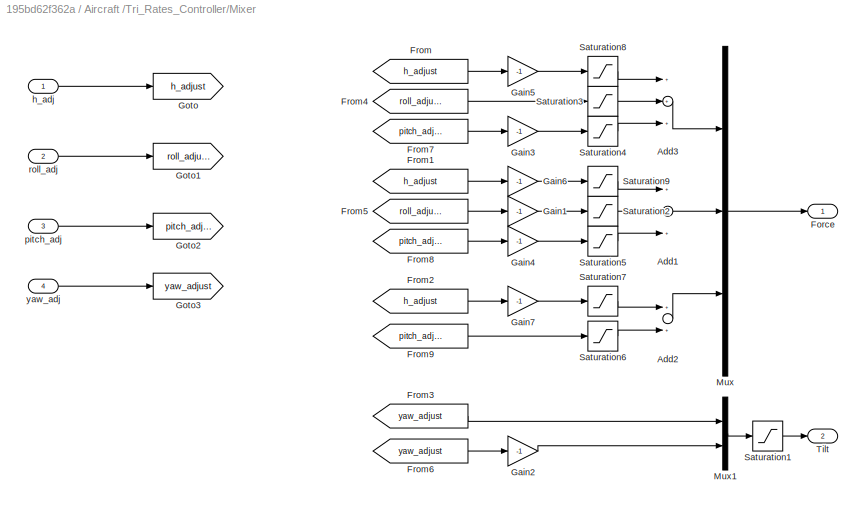
BLOCK [SubSystem] Aircraft /Tri_Rates_Controller/Mixer
  Ports = [4, 2]
  RequestExecContextInheritance = off
BLOCK [Sum] Aircraft /Tri_Rates_Controller/Mixer/Add1
  InputSameDT = off
  Inputs = +++
  OutDataTypeStr = Inherit: Inherit via internal rule
  Ports = [3, 1]
  SaturateOnIntegerOverflow = off
BLOCK [Sum] Aircraft /Tri_Rates_Controller/Mixer/Add2
  InputSameDT = off
  OutDataTypeStr = Inherit: Inherit via internal rule
  Ports = [2, 1]
  SaturateOnIntegerOverflow = off
BLOCK [Sum] Aircraft /Tri_Rates_Controller/Mixer/Add3
  InputSameDT = off
  Inputs = +++
  OutDataTypeStr = Inherit: Inherit via internal rule
  Ports = [3, 1]
  SaturateOnIntegerOverflow = off
BLOCK [Outport] Aircraft /Tri_Rates_Controller/Mixer/Force
  IconDisplay = Port number
BLOCK [From] Aircraft /Tri_Rates_Controller/Mixer/From
  GotoTag = h_adjust
BLOCK [From] Aircraft /Tri_Rates_Controller/Mixer/From1
  GotoTag = h_adjust
BLOCK [From] Aircraft /Tri_Rates_Controller/Mixer/From2
  GotoTag = h_adjust
BLOCK [From] Aircraft /Tri_Rates_Controller/Mixer/From3
  GotoTag = yaw_adjust
BLOCK [From] Aircraft /Tri_Rates_Controller/Mixer/From4
  GotoTag = roll_adjust
BLOCK [From] Aircraft /Tri_Rates_Controller/Mixer/From5
  GotoTag = roll_adjust
BLOCK [From] Aircraft /Tri_Rates_Controller/Mixer/From6
  GotoTag = yaw_adjust
BLOCK [From] Aircraft /Tri_Rates_Controller/Mixer/From7
  GotoTag = pitch_adjust
BLOCK [From] Aircraft /Tri_Rates_Controller/Mixer/From8
  GotoTag = pitch_adjust
BLOCK [From] Aircraft /Tri_Rates_Controller/Mixer/From9
  GotoTag = pitch_adjust
BLOCK [Gain] Aircraft /Tri_Rates_Controller/Mixer/Gain1
  Gain = -1
  OutDataTypeStr = Inherit: Inherit via internal rule
  ParamDataTypeStr = Inherit: Inherit via internal rule
  SaturateOnIntegerOverflow = off
BLOCK [Gain] Aircraft /Tri_Rates_Controller/Mixer/Gain2
  Gain = -1
  OutDataTypeStr = Inherit: Inherit via internal rule
  ParamDataTypeStr = Inherit: Inherit via internal rule
  SaturateOnIntegerOverflow = off
BLOCK [Gain] Aircraft /Tri_Rates_Controller/Mixer/Gain3
  Gain = -1
  OutDataTypeStr = Inherit: Inherit via internal rule
  ParamDataTypeStr = Inherit: Inherit via internal rule
  SaturateOnIntegerOverflow = off
BLOCK [Gain] Aircraft /Tri_Rates_Controller/Mixer/Gain4
  Gain = -1
  OutDataTypeStr = Inherit: Inherit via internal rule
  ParamDataTypeStr = Inherit: Inherit via internal rule
  SaturateOnIntegerOverflow = off
BLOCK [Gain] Aircraft /Tri_Rates_Controller/Mixer/Gain5
  Gain = -1
  OutDataTypeStr = Inherit: Inherit via internal rule
  ParamDataTypeStr = Inherit: Inherit via internal rule
  SaturateOnIntegerOverflow = off
BLOCK [Gain] Aircraft /Tri_Rates_Controller/Mixer/Gain6
  Gain = -1
  OutDataTypeStr = Inherit: Inherit via internal rule
  ParamDataTypeStr = Inherit: Inherit via internal rule
  SaturateOnIntegerOverflow = off
BLOCK [Gain] Aircraft /Tri_Rates_Controller/Mixer/Gain7
  Gain = -1
  OutDataTypeStr = Inherit: Inherit via internal rule
  ParamDataTypeStr = Inherit: Inherit via internal rule
  SaturateOnIntegerOverflow = off
BLOCK [Goto] Aircraft /Tri_Rates_Controller/Mixer/Goto
  GotoTag = h_adjust
BLOCK [Goto] Aircraft /Tri_Rates_Controller/Mixer/Goto1
  GotoTag = roll_adjust
BLOCK [Goto] Aircraft /Tri_Rates_Controller/Mixer/Goto2
  GotoTag = pitch_adjust
BLOCK [Goto] Aircraft /Tri_Rates_Controller/Mixer/Goto3
  GotoTag = yaw_adjust
BLOCK [Mux] Aircraft /Tri_Rates_Controller/Mixer/Mux
  DisplayOption = bar
  Inputs = 3
  Ports = [3, 1]
BLOCK [Mux] Aircraft /Tri_Rates_Controller/Mixer/Mux1
  DisplayOption = bar
  Inputs = 2
  Ports = [2, 1]
BLOCK [Saturate] Aircraft /Tri_Rates_Controller/Mixer/Saturation1
  InputPortMap = u0
  LowerLimit = -2
  Ports = [1, 1]
  UpperLimit = 2
  ZeroCross = off
BLOCK [Saturate] Aircraft /Tri_Rates_Controller/Mixer/Saturation2
  InputPortMap = u0
  LowerLimit = 0
  Ports = [1, 1]
  UpperLimit = 0.3
  ZeroCross = off
BLOCK [Saturate] Aircraft /Tri_Rates_Controller/Mixer/Saturation3
  InputPortMap = u0
  LowerLimit = 0
  Ports = [1, 1]
  UpperLimit = 0.3
  ZeroCross = off
BLOCK [Saturate] Aircraft /Tri_Rates_Controller/Mixer/Saturation4
  InputPortMap = u0
  LowerLimit = 0
  Ports = [1, 1]
  UpperLimit = 0.3
  ZeroCross = off
BLOCK [Saturate] Aircraft /Tri_Rates_Controller/Mixer/Saturation5
  InputPortMap = u0
  LowerLimit = 0
  Ports = [1, 1]
  UpperLimit = 0.3
  ZeroCross = off
BLOCK [Saturate] Aircraft /Tri_Rates_Controller/Mixer/Saturation6
  InputPortMap = u0
  LowerLimit = 0
  Ports = [1, 1]
  UpperLimit = 0.3
  ZeroCross = off
BLOCK [Saturate] Aircraft /Tri_Rates_Controller/Mixer/Saturation7
  InputPortMap = u0
  LowerLimit = 0
  Ports = [1, 1]
  UpperLimit = 0.7
  ZeroCross = off
BLOCK [Saturate] Aircraft /Tri_Rates_Controller/Mixer/Saturation8
  InputPortMap = u0
  LowerLimit = 0
  Ports = [1, 1]
  UpperLimit = 0.7
  ZeroCross = off
BLOCK [Saturate] Aircraft /Tri_Rates_Controller/Mixer/Saturation9
  InputPortMap = u0
  LowerLimit = 0
  Ports = [1, 1]
  UpperLimit = 0.7
  ZeroCross = off
BLOCK [Outport] Aircraft /Tri_Rates_Controller/Mixer/Tilt
  IconDisplay = Port number
  Port = 2
BLOCK [Inport] Aircraft /Tri_Rates_Controller/Mixer/h_adj
  IconDisplay = Port number
BLOCK [Inport] Aircraft /Tri_Rates_Controller/Mixer/pitch_adj
  IconDisplay = Port number
  Port = 3
BLOCK [Inport] Aircraft /Tri_Rates_Controller/Mixer/roll_adj
  IconDisplay = Port number
  Port = 2
BLOCK [Inport] Aircraft /Tri_Rates_Controller/Mixer/yaw_adj
  IconDisplay = Port number
  Port = 4
BLOCK [Mux] Aircraft /Tri_Rates_Controller/Mux1
  DisplayOption = bar
  Inputs = 2
  Ports = [2, 1]
BLOCK [Reference] Aircraft /Tri_Rates_Controller/PID Controller  REF=simulink/Continuous/PID Controller
  Ports = [1, 1]
  SourceBlock = simulink/Continuous/PID Controller
  SourceProductBaseCode = SL
  SourceProductName = Simulink
  SourceType = PID 1dof
BLOCK [Reference] Aircraft /Tri_Rates_Controller/PID Controller1  REF=simulink/Continuous/PID Controller
  Ports = [1, 1]
  SourceBlock = simulink/Continuous/PID Controller
  SourceProductBaseCode = SL
  SourceProductName = Simulink
  SourceType = PID 1dof
BLOCK [Reference] Aircraft /Tri_Rates_Controller/PID Controller3  REF=simulink/Continuous/PID Controller
  Ports = [1, 1]
  SourceBlock = simulink/Continuous/PID Controller
  SourceProductBaseCode = SL
  SourceProductName = Simulink
  SourceType = PID 1dof
BLOCK [Reference] Aircraft /Tri_Rates_Controller/PID Controller5  REF=simulink/Continuous/PID Controller
  Ports = [1, 1]
  SourceBlock = simulink/Continuous/PID Controller
  SourceProductBaseCode = SL
  SourceProductName = Simulink
  SourceType = PID 1dof
BLOCK [Inport] Aircraft /Tri_Rates_Controller/States 
  IconDisplay = Port number
  Port = 2
BLOCK [Terminator] Aircraft /Tri_Rates_Controller/Terminator1
BLOCK [Terminator] Aircraft /Tri_Rates_Controller/Terminator5
BLOCK [Inport] Aircraft /Tri_weight
  IconDisplay = Port number
  Port = 3
BLOCK [BusSelector] Bus Selector
  OutputAsBus = off
  OutputSignals = Ve,Xe,Euler,Vb,Rates
  Ports = [1, 5]
BLOCK [Constant] Constant
  Value = 0
BLOCK [SubSystem] MATLAB Function2
  ErrorFcn = Stateflow.Translate.translate
  PermitHierarchicalResolution = ExplicitOnly
  Ports = [3, 2]
  RequestExecContextInheritance = off
  SFBlockType = MATLAB Function
  TreatAsAtomicUnit = on
BLOCK [Demux] MATLAB Function2/ Demux 
  Outputs = 1
  Ports = [1, 1]
BLOCK [S-Function] MATLAB Function2/ SFunction 
  EnableBusSupport = on
  FunctionName = sf_sfun
  PortCounts = [3 3]
  Ports = [3, 3]
  SFcnIsStateOwnerBlock = off
  SFunctionDeploymentMode = off
  Tag = Stateflow S-Function Transition 2
BLOCK [Terminator] MATLAB Function2/ Terminator 
BLOCK [Inport] MATLAB Function2/Tilt_offset
  IconDisplay = Port number
  Port = 2
BLOCK [Inport] MATLAB Function2/Tri_weight
  IconDisplay = Port number
BLOCK [Inport] MATLAB Function2/Velocity
  IconDisplay = Port number
  Port = 3
BLOCK [Outport] MATLAB Function2/offset
  IconDisplay = Port number
  Port = 2
BLOCK [Outport] MATLAB Function2/weight
  IconDisplay = Port number
BLOCK [SubSystem] Observation1
  Ports = [2, 1]
  RequestExecContextInheritance = off
BLOCK [Sum] Observation1/Add
  InputSameDT = off
  Inputs = -+
  OutDataTypeStr = Inherit: Inherit via internal rule
  Ports = [2, 1]
  SaturateOnIntegerOverflow = off
BLOCK [Sum] Observation1/Add1
  InputSameDT = off
  Inputs = -+
  OutDataTypeStr = Inherit: Inherit via internal rule
  Ports = [2, 1]
  SaturateOnIntegerOverflow = off
BLOCK [Sum] Observation1/Add2
  InputSameDT = off
  Inputs = -+
  OutDataTypeStr = Inherit: Inherit via internal rule
  Ports = [2, 1]
  SaturateOnIntegerOverflow = off
BLOCK [BusSelector] Observation1/Bus Selector
  OutputAsBus = off
  OutputSignals = Xe
  Ports = [1, 1]
BLOCK [BusSelector] Observation1/Bus Selector1
  OutputAsBus = off
  OutputSignals = Euler
  Ports = [1, 1]
BLOCK [BusSelector] Observation1/Bus Selector2
  OutputAsBus = off
  OutputSignals = Vb
  Ports = [1, 1]
BLOCK [Demux] Observation1/Demux1
  DisplayOption = bar
  Outputs = 3
  Ports = [1, 3]
BLOCK [Demux] Observation1/Demux2
  DisplayOption = bar
  Outputs = 3
  Ports = [1, 3]
BLOCK [Gain] Observation1/Gain
  Gain = 1/20
  OutDataTypeStr = Inherit: Inherit via internal rule
  ParamDataTypeStr = Inherit: Inherit via internal rule
  SaturateOnIntegerOverflow = off
BLOCK [Gain] Observation1/Gain1
  Gain = 1/100
  OutDataTypeStr = Inherit: Inherit via internal rule
  ParamDataTypeStr = Inherit: Inherit via internal rule
  SaturateOnIntegerOverflow = off
BLOCK [Gain] Observation1/Gain2
  Gain = 1/20
  OutDataTypeStr = Inherit: Inherit via internal rule
  ParamDataTypeStr = Inherit: Inherit via internal rule
  SaturateOnIntegerOverflow = off
BLOCK [Gain] Observation1/Gain3
  Gain = 1/10
  OutDataTypeStr = Inherit: Inherit via internal rule
  ParamDataTypeStr = Inherit: Inherit via internal rule
  SaturateOnIntegerOverflow = off
BLOCK [Mux] Observation1/Mux
  DisplayOption = bar
  Inputs = 3
  Ports = [3, 1]
BLOCK [Mux] Observation1/Mux1
  DisplayOption = bar
  Ports = [4, 1]
BLOCK [Outport] Observation1/Observations 
  IconDisplay = Port number
BLOCK [Saturate] Observation1/Saturation
  InputPortMap = u0
  LowerLimit = -1
  Ports = [1, 1]
  UpperLimit = 1
BLOCK [Inport] Observation1/States
  IconDisplay = Port number
  Port = 2
BLOCK [TransportDelay] Observation1/Transport Delay
  DelayTime = Ts
  Ports = [1, 1]
BLOCK [Inport] Observation1/desired position
  IconDisplay = Port number
BLOCK [SubSystem] RL Agent
  AncestorBlock = rllib/RL Agent
  Ports = [3, 2]
  RequestExecContextInheritance = off
BLOCK [MATLABSystem] RL Agent/AgentWrapper
  AgentObjectName = Agent
  BlockPath = Transition/RL Agent/AgentWrapper
  CollectLoggedSignals = true
  CollectModelStates = true
  IsIsDoneProvided = true
  IsRewardProvided = true
  MaskDisplay = disp('AgentWrapper');\nport_label('input',1,'observation');\nport_label('input',2,'reward');\nport_label('input',3,'isdone');\nport_label('output',1,'action');
  MaskType = AgentWrapper
  ModelName = Transition
  Ports = [3, 1]
  System = AgentWrapper
  TreatAsDirectFeedthrough = true
BLOCK [SubSystem] RL Agent/accumulate_reward
  Ports = [1, 1]
  RequestExecContextInheritance = off
BLOCK [Constant] RL Agent/accumulate_reward/Constant
BLOCK [UnitDelay] RL Agent/accumulate_reward/Unit Delay
  HasFrameUpgradeWarning = on
  SampleTime = -1
BLOCK [ZeroOrderHold] RL Agent/accumulate_reward/Zero-Order Hold
  SampleTime = -1
BLOCK [SubSystem] RL Agent/accumulate_reward/cumsum
  Ports = [1, 1, 1]
  RequestExecContextInheritance = off
BLOCK [EnablePort] RL Agent/accumulate_reward/cumsum/Enable
  Ports = []
BLOCK [Sum] RL Agent/accumulate_reward/cumsum/Sum
  IconShape = round
  InputSameDT = off
  Inputs = |++
  OutDataTypeStr = Inherit: Inherit via internal rule
  Ports = [2, 1]
  SaturateOnIntegerOverflow = off
BLOCK [UnitDelay] RL Agent/accumulate_reward/cumsum/Unit Delay
  HasFrameUpgradeWarning = on
  SampleTime = -1
BLOCK [Outport] RL Agent/accumulate_reward/cumsum/cumulative_rwd
  IconDisplay = Port number
BLOCK [Inport] RL Agent/accumulate_reward/cumsum/rwd
  IconDisplay = Port number
BLOCK [Outport] RL Agent/accumulate_reward/cumulative_reward
  IconDisplay = Port number
BLOCK [Inport] RL Agent/accumulate_reward/reward
  IconDisplay = Port number
BLOCK [Outport] RL Agent/action
  IconDisplay = Port number
BLOCK [Outport] RL Agent/cumulative reward
  IconDisplay = Port number
  Port = 2
BLOCK [Terminator] RL Agent/cumulative_reward
BLOCK [Inport] RL Agent/isdone
  IconDisplay = Port number
  Port = 3
BLOCK [Inport] RL Agent/observation
  IconDisplay = Port number
BLOCK [Inport] RL Agent/reward
  IconDisplay = Port number
  Port = 2
BLOCK [SubSystem] Reward1
  Ports = [2, 1]
  RequestExecContextInheritance = off
BLOCK [Abs] Reward1/Abs
  SaturateOnIntegerOverflow = off
BLOCK [Abs] Reward1/Abs1
  SaturateOnIntegerOverflow = off
BLOCK [Abs] Reward1/Abs2
  SaturateOnIntegerOverflow = off
BLOCK [Abs] Reward1/Abs3
  SaturateOnIntegerOverflow = off
BLOCK [Sum] Reward1/Add
  InputSameDT = off
  Inputs = +-
  OutDataTypeStr = Inherit: Inherit via internal rule
  Ports = [2, 1]
  SaturateOnIntegerOverflow = off
BLOCK [Sum] Reward1/Add1
  InputSameDT = off
  Inputs = +-
  OutDataTypeStr = Inherit: Inherit via internal rule
  Ports = [2, 1]
  SaturateOnIntegerOverflow = off
BLOCK [Sum] Reward1/Add2
  InputSameDT = off
  Inputs = +++++
  OutDataTypeStr = Inherit: Inherit via internal rule
  Ports = [5, 1]
  SaturateOnIntegerOverflow = off
BLOCK [Sum] Reward1/Add3
  InputSameDT = off
  Inputs = +-
  OutDataTypeStr = Inherit: Inherit via internal rule
  Ports = [2, 1]
  SaturateOnIntegerOverflow = off
BLOCK [BusSelector] Reward1/Bus Selector
  OutputAsBus = off
  OutputSignals = Xe
  Ports = [1, 1]
BLOCK [BusSelector] Reward1/Bus Selector1
  OutputAsBus = off
  OutputSignals = Euler
  Ports = [1, 1]
BLOCK [Constant] Reward1/Constant
BLOCK [Demux] Reward1/Demux1
  DisplayOption = bar
  Outputs = 3
  Ports = [1, 3]
BLOCK [Demux] Reward1/Demux3
  DisplayOption = bar
  Outputs = 3
  Ports = [1, 3]
BLOCK [Demux] Reward1/Demux4
  DisplayOption = bar
  Outputs = 3
  Ports = [1, 3]
BLOCK [Gain] Reward1/Gain
  Gain = -0.1
  OutDataTypeStr = Inherit: Inherit via internal rule
  ParamDataTypeStr = Inherit: Inherit via internal rule
  SaturateOnIntegerOverflow = off
BLOCK [Gain] Reward1/Gain1
  Gain = -0.1
  OutDataTypeStr = Inherit: Inherit via internal rule
  ParamDataTypeStr = Inherit: Inherit via internal rule
  SaturateOnIntegerOverflow = off
BLOCK [Gain] Reward1/Gain2
  Gain = -0.1
  OutDataTypeStr = Inherit: Inherit via internal rule
  ParamDataTypeStr = Inherit: Inherit via internal rule
  SaturateOnIntegerOverflow = off
BLOCK [Gain] Reward1/Gain3
  Gain = -0.02
  OutDataTypeStr = Inherit: Inherit via internal rule
  ParamDataTypeStr = Inherit: Inherit via internal rule
  SaturateOnIntegerOverflow = off
BLOCK [Inport] Reward1/States
  IconDisplay = Port number
  Port = 2
BLOCK [Terminator] Reward1/Terminator
BLOCK [Terminator] Reward1/Terminator1
BLOCK [Inport] Reward1/desired positon
  IconDisplay = Port number
BLOCK [Outport] Reward1/reward
  IconDisplay = Port number
BLOCK [Scope] Scope
  Floating = off
  IOType = viewer
  NumInputPorts = 1
  Ports = []
  ScopeSpecificationString = Simulink.scopes.TimeScopeBlockCfg('CurrentConfiguration', extmgr.ConfigurationSet(extmgr.Configuration('Core','General UI',true),extmgr.Configuration('Core','Source UI',true),extmgr.Configuration('Sources','WiredSimulink',true,'DataLoggingVariableName','ScopeData1'),extmgr.Configuration('Visuals','Time Domain',true,'SerializedDisplays',{struct('MinYLimReal','-0.29572','MaxYLimReal','0.16101','YLab...<+1395ch>
BLOCK [Scope] Scope1
  Floating = off
  IOType = viewer
  NumInputPorts = 1
  Ports = []
  ScopeSpecificationString = Simulink.scopes.TimeScopeBlockCfg('CurrentConfiguration', extmgr.ConfigurationSet(extmgr.Configuration('Core','General UI',true),extmgr.Configuration('Core','Source UI',true),extmgr.Configuration('Sources','WiredSimulink',true,'DataLoggingVariableName','ScopeData2'),extmgr.Configuration('Visuals','Time Domain',true,'SerializedDisplays',{struct('MinYLimReal','-10.00000','MaxYLimReal','10.00000','YL...<+1404ch>
BLOCK [Scope] Scope2
  Floating = off
  IOType = viewer
  NumInputPorts = 1
  Ports = []
  ScopeSpecificationString = Simulink.scopes.TimeScopeBlockCfg('CurrentConfiguration', extmgr.ConfigurationSet(extmgr.Configuration('Core','General UI',true),extmgr.Configuration('Core','Source UI',true),extmgr.Configuration('Sources','WiredSimulink',true,'DataLoggingVariableName','ScopeData3'),extmgr.Configuration('Visuals','Time Domain',true,'SerializedDisplays',{struct('MinYLimReal','-10.00000','MaxYLimReal','10.00000','YL...<+1427ch>
BLOCK [Scope] Scope3
  Floating = off
  NumInputPorts = 5
  Ports = [5]
  ScopeSpecificationString = Simulink.scopes.TimeScopeBlockCfg('CurrentConfiguration', extmgr.ConfigurationSet(extmgr.Configuration('Core','General UI',true),extmgr.Configuration('Core','Source UI',true),extmgr.Configuration('Sources','WiredSimulink',true,'DataLoggingVariableName','ScopeData4'),extmgr.Configuration('Visuals','Time Domain',true,'SerializedDisplays',{struct('MinYLimReal','-365.46085','MaxYLimReal','479.17561','...<+1954ch>
BLOCK [Scope] Scope4
  Floating = off
  IOType = viewer
  NumInputPorts = 1
  Ports = []
  ScopeSpecificationString = Simulink.scopes.TimeScopeBlockCfg('CurrentConfiguration', extmgr.ConfigurationSet(extmgr.Configuration('Core','General UI',true),extmgr.Configuration('Core','Source UI',true),extmgr.Configuration('Sources','WiredSimulink',true,'DataLoggingVariableName','ScopeData5'),extmgr.Configuration('Visuals','Time Domain',true,'SerializedDisplays',{struct('MinYLimReal','-10.00000','MaxYLimReal','10.00000','YL...<+1365ch>
BLOCK [Scope] Scope5
  Floating = off
  NumInputPorts = 1
  Ports = [1]
  ScopeSpecificationString = Simulink.scopes.TimeScopeBlockCfg('CurrentConfiguration', extmgr.ConfigurationSet(extmgr.Configuration('Core','General UI',true),extmgr.Configuration('Core','Source UI',true),extmgr.Configuration('Sources','WiredSimulink',true,'DataLoggingVariableName','ScopeData1'),extmgr.Configuration('Visuals','Time Domain',true),extmgr.Configuration('Tools','Plot Navigation',true),extmgr.Configuration('Tools',...<+40ch>
BLOCK [SubSystem] Subsystem1
  Ports = [1, 4]
  RequestExecContextInheritance = off
BLOCK [SubSystem] Subsystem1/-1//1 to 0//1_1
  Ports = [1, 1]
  RequestExecContextInheritance = off
BLOCK [Inport] Subsystem1/-1//1 to 0//1_1/<i>
  IconDisplay = Port number
BLOCK [Sum] Subsystem1/-1//1 to 0//1_1/Add
  InputSameDT = off
  OutDataTypeStr = Inherit: Inherit via internal rule
  Ports = [2, 1]
  SaturateOnIntegerOverflow = off
BLOCK [Constant] Subsystem1/-1//1 to 0//1_1/Constant
BLOCK [Gain] Subsystem1/-1//1 to 0//1_1/Gain
  Gain = 0.5
  OutDataTypeStr = Inherit: Inherit via internal rule
  ParamDataTypeStr = Inherit: Inherit via internal rule
  SaturateOnIntegerOverflow = off
BLOCK [Outport] Subsystem1/-1//1 to 0//1_1/o
  IconDisplay = Port number
BLOCK [SubSystem] Subsystem1/-1//1 to 0//1_2
  Ports = [1, 1]
  RequestExecContextInheritance = off
BLOCK [Inport] Subsystem1/-1//1 to 0//1_2/<i>
  IconDisplay = Port number
BLOCK [Sum] Subsystem1/-1//1 to 0//1_2/Add
  InputSameDT = off
  OutDataTypeStr = Inherit: Inherit via internal rule
  Ports = [2, 1]
  SaturateOnIntegerOverflow = off
BLOCK [Constant] Subsystem1/-1//1 to 0//1_2/Constant
BLOCK [Gain] Subsystem1/-1//1 to 0//1_2/Gain
  Gain = 0.5
  OutDataTypeStr = Inherit: Inherit via internal rule
  ParamDataTypeStr = Inherit: Inherit via internal rule
  SaturateOnIntegerOverflow = off
BLOCK [Outport] Subsystem1/-1//1 to 0//1_2/o
  IconDisplay = Port number
BLOCK [SubSystem] Subsystem1/-1//1 to 0//1_3
  Ports = [1, 1]
  RequestExecContextInheritance = off
BLOCK [Inport] Subsystem1/-1//1 to 0//1_3/<i>
  IconDisplay = Port number
BLOCK [Sum] Subsystem1/-1//1 to 0//1_3/Add
  InputSameDT = off
  OutDataTypeStr = Inherit: Inherit via internal rule
  Ports = [2, 1]
  SaturateOnIntegerOverflow = off
BLOCK [Constant] Subsystem1/-1//1 to 0//1_3/Constant
BLOCK [Gain] Subsystem1/-1//1 to 0//1_3/Gain
  Gain = 0.5
  OutDataTypeStr = Inherit: Inherit via internal rule
  ParamDataTypeStr = Inherit: Inherit via internal rule
  SaturateOnIntegerOverflow = off
BLOCK [Outport] Subsystem1/-1//1 to 0//1_3/o
  IconDisplay = Port number
BLOCK [BusCreator] Subsystem1/Bus Creator
  DisplayOption = bar
  InheritFromInputs = on
  Inputs = 4
  Ports = [4, 1]
BLOCK [Constant] Subsystem1/Constant
  Value = 0
BLOCK [Demux] Subsystem1/Demux1
  DisplayOption = bar
  Outputs = 6
  Ports = [1, 6]
BLOCK [Outport] Subsystem1/FF_weight
  IconDisplay = Port number
  Port = 2
BLOCK [Gain] Subsystem1/Gain4
  Gain = 90
  OutDataTypeStr = Inherit: Inherit via internal rule
  ParamDataTypeStr = Inherit: Inherit via internal rule
  SaturateOnIntegerOverflow = off
BLOCK [Inport] Subsystem1/In1
  IconDisplay = Port number
BLOCK [Outport] Subsystem1/TAER
  IconDisplay = Port number
BLOCK [Outport] Subsystem1/Tilt_offset
  IconDisplay = Port number
  Port = 4
BLOCK [Outport] Subsystem1/Tri_weight
  IconDisplay = Port number
  Port = 3
BLOCK [Constant] desired location1
  Value = [1000,0,-20]
NET Aircraft /Demands:1 -> Aircraft /FF_Attitude Controller1:1, Aircraft /Tri_Attitude Controller:1
LINE Aircraft /FFController1/Add1:1 -> Aircraft /FFController1/PID Controller7:1
LINE Aircraft /FFController1/Add2:1 -> Aircraft /FFController1/PID Controller4:1
LINE Aircraft /FFController1/Add6:1 -> Aircraft /FFController1/PID Controller6:1
LINE Aircraft /FFController1/Add7:1 -> Aircraft /FFController1/PID Controller5:1
LINE Aircraft /FFController1/Bus Creator:1 -> Aircraft /FFController1/Control:1
LINE Aircraft /FFController1/Bus Selector1:1 -> Aircraft /FFController1/Add2:1
LINE Aircraft /FFController1/Bus Selector1:2 -> Aircraft /FFController1/Add1:1
LINE Aircraft /FFController1/Bus Selector1:3 -> Aircraft /FFController1/Add6:1
LINE Aircraft /FFController1/Bus Selector1:4 -> Aircraft /FFController1/Add7:1
LINE Aircraft /FFController1/Bus Selector:1 -> Aircraft /FFController1/Delay:1
LINE Aircraft /FFController1/Bus Selector:2 -> Aircraft /FFController1/Demux3:1
NET Aircraft /FFController1/Constant1:1 -> Aircraft /FFController1/Mux2:1, Aircraft /FFController1/Mux2:2, Aircraft /FFController1/Mux:3
LINE Aircraft /FFController1/Delay:1 -> Aircraft /FFController1/Demux1:1
LINE Aircraft /FFController1/Demand:1 -> Aircraft /FFController1/Bus Selector1:1
LINE Aircraft /FFController1/Demux1:1 -> Aircraft /FFController1/Add2:2
LINE Aircraft /FFController1/Demux1:2 -> Aircraft /FFController1/Terminator1:1
LINE Aircraft /FFController1/Demux1:3 -> Aircraft /FFController1/Terminator5:1
LINE Aircraft /FFController1/Demux3:1 -> Aircraft /FFController1/Add1:2
LINE Aircraft /FFController1/Demux3:2 -> Aircraft /FFController1/Add6:2
LINE Aircraft /FFController1/Demux3:3 -> Aircraft /FFController1/Add7:2
LINE Aircraft /FFController1/Mixer/Add1:1 -> Aircraft /FFController1/Mixer/F2:1
LINE Aircraft /FFController1/Mixer/Add5:1 -> Aircraft /FFController1/Mixer/deltaR:1
LINE Aircraft /FFController1/Mixer/Add6:1 -> Aircraft /FFController1/Mixer/deltaL:1
LINE Aircraft /FFController1/Mixer/Add:1 -> Aircraft /FFController1/Mixer/F1:1
LINE Aircraft /FFController1/Mixer/From1:1 -> Aircraft /FFController1/Mixer/Add5:2
LINE Aircraft /FFController1/Mixer/From2:1 -> Aircraft /FFController1/Mixer/Saturation1:1
LINE Aircraft /FFController1/Mixer/From3:1 -> Aircraft /FFController1/Mixer/Add6:1
LINE Aircraft /FFController1/Mixer/From4:1 -> Aircraft /FFController1/Mixer/Add6:2
LINE Aircraft /FFController1/Mixer/From6:1 -> Aircraft /FFController1/Mixer/Saturation2:1
LINE Aircraft /FFController1/Mixer/From:1 -> Aircraft /FFController1/Mixer/Add5:1
NET Aircraft /FFController1/Mixer/Saturation1:1 -> Aircraft /FFController1/Mixer/Add1:2, Aircraft /FFController1/Mixer/Add:2
NET Aircraft /FFController1/Mixer/Saturation2:1 -> Aircraft /FFController1/Mixer/Add1:1, Aircraft /FFController1/Mixer/Add:1
LINE Aircraft /FFController1/Mixer/pitch_adj:1 -> Aircraft /FFController1/Mixer/Goto1:1
LINE Aircraft /FFController1/Mixer/roll_adj:1 -> Aircraft /FFController1/Mixer/Goto:1
LINE Aircraft /FFController1/Mixer/vel_adj:1 -> Aircraft /FFController1/Mixer/Goto3:1
LINE Aircraft /FFController1/Mixer/yaw_adj:1 -> Aircraft /FFController1/Mixer/Goto2:1
LINE Aircraft /FFController1/Mixer:1 -> Aircraft /FFController1/Mux:1
LINE Aircraft /FFController1/Mixer:2 -> Aircraft /FFController1/Mux:2
LINE Aircraft /FFController1/Mixer:3 -> Aircraft /FFController1/Mux1:1
LINE Aircraft /FFController1/Mixer:4 -> Aircraft /FFController1/Mux1:2
LINE Aircraft /FFController1/Mux1:1 -> Aircraft /FFController1/Bus Creator:3
LINE Aircraft /FFController1/Mux2:1 -> Aircraft /FFController1/Bus Creator:2
LINE Aircraft /FFController1/Mux:1 -> Aircraft /FFController1/Bus Creator:1
LINE Aircraft /FFController1/PID Controller4:1 -> Aircraft /FFController1/Mixer:1
LINE Aircraft /FFController1/PID Controller5:1 -> Aircraft /FFController1/Mixer:4
LINE Aircraft /FFController1/PID Controller6:1 -> Aircraft /FFController1/Mixer:3
LINE Aircraft /FFController1/PID Controller7:1 -> Aircraft /FFController1/Mixer:2
LINE Aircraft /FFController1/States :1 -> Aircraft /FFController1/Bus Selector:1
LINE Aircraft /FFController1:1 -> Aircraft /Subsystem1:1
LINE Aircraft /FF_Attitude Controller1/-1//1 to 0//1_1/<i>:1 -> Aircraft /FF_Attitude Controller1/-1//1 to 0//1_1/Add:2
LINE Aircraft /FF_Attitude Controller1/-1//1 to 0//1_1/Add:1 -> Aircraft /FF_Attitude Controller1/-1//1 to 0//1_1/Gain:1
LINE Aircraft /FF_Attitude Controller1/-1//1 to 0//1_1/Constant:1 -> Aircraft /FF_Attitude Controller1/-1//1 to 0//1_1/Add:1
LINE Aircraft /FF_Attitude Controller1/-1//1 to 0//1_1/Gain:1 -> Aircraft /FF_Attitude Controller1/-1//1 to 0//1_1/o:1
LINE Aircraft /FF_Attitude Controller1/-1//1 to 0//1_1:1 -> Aircraft /FF_Attitude Controller1/Gain:1
LINE Aircraft /FF_Attitude Controller1/Add1:1 -> Aircraft /FF_Attitude Controller1/PID Controller5:1
LINE Aircraft /FF_Attitude Controller1/Add2:1 -> Aircraft /FF_Attitude Controller1/PID Controller3:1
LINE Aircraft /FF_Attitude Controller1/Add3:1 -> Aircraft /FF_Attitude Controller1/PID Controller1:1
LINE Aircraft /FF_Attitude Controller1/Bus Creator:1 -> Aircraft /FF_Attitude Controller1/Rate Demand:1
LINE Aircraft /FF_Attitude Controller1/Bus Selector1:1 -> Aircraft /FF_Attitude Controller1/-1//1 to 0//1_1:1
LINE Aircraft /FF_Attitude Controller1/Bus Selector1:2 -> Aircraft /FF_Attitude Controller1/Gain1:1
LINE Aircraft /FF_Attitude Controller1/Bus Selector1:3 -> Aircraft /FF_Attitude Controller1/Gain2:1
LINE Aircraft /FF_Attitude Controller1/Bus Selector1:4 -> Aircraft /FF_Attitude Controller1/Add3:1
LINE Aircraft /FF_Attitude Controller1/Bus Selector:1 -> Aircraft /FF_Attitude Controller1/Demux1:1
LINE Aircraft /FF_Attitude Controller1/Demand :1 -> Aircraft /FF_Attitude Controller1/Bus Selector1:1
LINE Aircraft /FF_Attitude Controller1/Demux1:1 -> Aircraft /FF_Attitude Controller1/Add1:2
LINE Aircraft /FF_Attitude Controller1/Demux1:2 -> Aircraft /FF_Attitude Controller1/Add2:2
LINE Aircraft /FF_Attitude Controller1/Demux1:3 -> Aircraft /FF_Attitude Controller1/Add3:2
LINE Aircraft /FF_Attitude Controller1/Gain1:1 -> Aircraft /FF_Attitude Controller1/Add1:1
LINE Aircraft /FF_Attitude Controller1/Gain2:1 -> Aircraft /FF_Attitude Controller1/Add2:1
LINE Aircraft /FF_Attitude Controller1/Gain:1 -> Aircraft /FF_Attitude Controller1/Bus Creator:1
LINE Aircraft /FF_Attitude Controller1/PID Controller1:1 -> Aircraft /FF_Attitude Controller1/Saturation3:1
LINE Aircraft /FF_Attitude Controller1/PID Controller3:1 -> Aircraft /FF_Attitude Controller1/Saturation2:1
LINE Aircraft /FF_Attitude Controller1/PID Controller5:1 -> Aircraft /FF_Attitude Controller1/Saturation1:1
LINE Aircraft /FF_Attitude Controller1/Saturation1:1 -> Aircraft /FF_Attitude Controller1/Bus Creator:2
LINE Aircraft /FF_Attitude Controller1/Saturation2:1 -> Aircraft /FF_Attitude Controller1/Bus Creator:3
LINE Aircraft /FF_Attitude Controller1/Saturation3:1 -> Aircraft /FF_Attitude Controller1/Bus Creator:4
LINE Aircraft /FF_Attitude Controller1/States :1 -> Aircraft /FF_Attitude Controller1/Bus Selector:1
LINE Aircraft /FF_Attitude Controller1:1 -> Aircraft /FFController1:1
LINE Aircraft /FF_weight:1 -> Aircraft /Subsystem1:2
LINE Aircraft /Flight Dynamics/6DOF (Euler Angles):1 -> Aircraft /Flight Dynamics/Bus Creator:1
LINE Aircraft /Flight Dynamics/6DOF (Euler Angles):2 -> Aircraft /Flight Dynamics/Bus Creator:2
LINE Aircraft /Flight Dynamics/6DOF (Euler Angles):3 -> Aircraft /Flight Dynamics/Radians to Degrees1:1
LINE Aircraft /Flight Dynamics/6DOF (Euler Angles):4 -> Aircraft /Flight Dynamics/Bus Creator:4
LINE Aircraft /Flight Dynamics/6DOF (Euler Angles):5 -> Aircraft /Flight Dynamics/Bus Creator:5
LINE Aircraft /Flight Dynamics/6DOF (Euler Angles):6 -> Aircraft /Flight Dynamics/Radians to Degrees2:1
LINE Aircraft /Flight Dynamics/6DOF (Euler Angles):7 -> Aircraft /Flight Dynamics/Bus Creator:7
LINE Aircraft /Flight Dynamics/6DOF (Euler Angles):8 -> Aircraft /Flight Dynamics/Bus Creator:8
LINE Aircraft /Flight Dynamics/6DOF (Euler Angles):9 -> Aircraft /Flight Dynamics/Bus Creator:9
LINE Aircraft /Flight Dynamics/Add1:1 -> Aircraft /Flight Dynamics/6DOF (Euler Angles):2
LINE Aircraft /Flight Dynamics/Add:1 -> Aircraft /Flight Dynamics/6DOF (Euler Angles):1
LINE Aircraft /Flight Dynamics/Aerodynamic Forces/Add13:1 -> Aircraft /Flight Dynamics/Aerodynamic Forces/correct negative velocity:3
LINE Aircraft /Flight Dynamics/Aerodynamic Forces/Aero_coefficients/Cd:1 -> Aircraft /Flight Dynamics/Aerodynamic Forces/Aero_coefficients/Mux:1
LINE Aircraft /Flight Dynamics/Aerodynamic Forces/Aero_coefficients/Cl :1 -> Aircraft /Flight Dynamics/Aerodynamic Forces/Aero_coefficients/Mux:3
NET Aircraft /Flight Dynamics/Aerodynamic Forces/Aero_coefficients/Cl:1 -> Aircraft /Flight Dynamics/Aerodynamic Forces/Aero_coefficients/Mux:2, Aircraft /Flight Dynamics/Aerodynamic Forces/Aero_coefficients/Mux:4, Aircraft /Flight Dynamics/Aerodynamic Forces/Aero_coefficients/Mux:6
LINE Aircraft /Flight Dynamics/Aerodynamic Forces/Aero_coefficients/Cm:1 -> Aircraft /Flight Dynamics/Aerodynamic Forces/Aero_coefficients/Mux:5
LINE Aircraft /Flight Dynamics/Aerodynamic Forces/Aero_coefficients/Mux:1 -> Aircraft /Flight Dynamics/Aerodynamic Forces/Aero_coefficients/Coeff:1
NET Aircraft /Flight Dynamics/Aerodynamic Forces/Aero_coefficients/alpha:1 -> Aircraft /Flight Dynamics/Aerodynamic Forces/Aero_coefficients/Cd:1, Aircraft /Flight Dynamics/Aerodynamic Forces/Aero_coefficients/Cl :1, Aircraft /Flight Dynamics/Aerodynamic Forces/Aero_coefficients/Cm:1
LINE Aircraft /Flight Dynamics/Aerodynamic Forces/Aero_coefficients:1 -> Aircraft /Flight Dynamics/Aerodynamic Forces/Aerodynamic Forces and Moments :1
LINE Aircraft /Flight Dynamics/Aerodynamic Forces/Aerodynamic Forces and Moments :1 -> Aircraft /Flight Dynamics/Aerodynamic Forces/correct negative velocity:2
LINE Aircraft /Flight Dynamics/Aerodynamic Forces/Aerodynamic Forces and Moments :2 -> Aircraft /Flight Dynamics/Aerodynamic Forces/Add13:3
LINE Aircraft /Flight Dynamics/Aerodynamic Forces/AileronL/ :1 -> Aircraft /Flight Dynamics/Aerodynamic Forces/AileronL/Mux:1
NET Aircraft /Flight Dynamics/Aerodynamic Forces/AileronL/AilevonArea:1 -> Aircraft /Flight Dynamics/Aerodynamic Forces/AileronL/Product1:2, Aircraft /Flight Dynamics/Aerodynamic Forces/AileronL/Product:2
LINE Aircraft /Flight Dynamics/Aerodynamic Forces/AileronL/Constant1:1 -> Aircraft /Flight Dynamics/Aerodynamic Forces/AileronL/Mux1:2
LINE Aircraft /Flight Dynamics/Aerodynamic Forces/AileronL/Gain1:1 -> Aircraft /Flight Dynamics/Aerodynamic Forces/AileronL/F:1
LINE Aircraft /Flight Dynamics/Aerodynamic Forces/AileronL/Gain:1 -> Aircraft /Flight Dynamics/Aerodynamic Forces/AileronL/M:1
LINE Aircraft /Flight Dynamics/Aerodynamic Forces/AileronL/Mux1:1 -> Aircraft /Flight Dynamics/Aerodynamic Forces/AileronL/Gain1:1
LINE Aircraft /Flight Dynamics/Aerodynamic Forces/AileronL/Mux:1 -> Aircraft /Flight Dynamics/Aerodynamic Forces/AileronL/Gain:1
NET Aircraft /Flight Dynamics/Aerodynamic Forces/AileronL/Product1:1 -> Aircraft /Flight Dynamics/Aerodynamic Forces/AileronL/a1:1, Aircraft /Flight Dynamics/Aerodynamic Forces/AileronL/gain2:1
LINE Aircraft /Flight Dynamics/Aerodynamic Forces/AileronL/Product:1 -> Aircraft /Flight Dynamics/Aerodynamic Forces/AileronL/gain1:1
LINE Aircraft /Flight Dynamics/Aerodynamic Forces/AileronL/Saturation:1 -> Aircraft /Flight Dynamics/Aerodynamic Forces/AileronL/Sum:1
NET Aircraft /Flight Dynamics/Aerodynamic Forces/AileronL/Sum:1 -> Aircraft /Flight Dynamics/Aerodynamic Forces/AileronL/alpha-CD:1, Aircraft /Flight Dynamics/Aerodynamic Forces/AileronL/alpha-CL:1
LINE Aircraft /Flight Dynamics/Aerodynamic Forces/AileronL/a1:1 -> Aircraft /Flight Dynamics/Aerodynamic Forces/AileronL/gain4:1
NET Aircraft /Flight Dynamics/Aerodynamic Forces/AileronL/a:1 -> Aircraft /Flight Dynamics/Aerodynamic Forces/AileronL/ :1, Aircraft /Flight Dynamics/Aerodynamic Forces/AileronL/Mux:2
LINE Aircraft /Flight Dynamics/Aerodynamic Forces/AileronL/alpha-CD:1 -> Aircraft /Flight Dynamics/Aerodynamic Forces/AileronL/Product1:1
LINE Aircraft /Flight Dynamics/Aerodynamic Forces/AileronL/alpha-CL:1 -> Aircraft /Flight Dynamics/Aerodynamic Forces/AileronL/Product:1
LINE Aircraft /Flight Dynamics/Aerodynamic Forces/AileronL/alpha:1 -> Aircraft /Flight Dynamics/Aerodynamic Forces/AileronL/Sum:2
LINE Aircraft /Flight Dynamics/Aerodynamic Forces/AileronL/delta:1 -> Aircraft /Flight Dynamics/Aerodynamic Forces/AileronL/Saturation:1
NET Aircraft /Flight Dynamics/Aerodynamic Forces/AileronL/gain1:1 -> Aircraft /Flight Dynamics/Aerodynamic Forces/AileronL/Mux1:3, Aircraft /Flight Dynamics/Aerodynamic Forces/AileronL/a:1
LINE Aircraft /Flight Dynamics/Aerodynamic Forces/AileronL/gain2:1 -> Aircraft /Flight Dynamics/Aerodynamic Forces/AileronL/Mux1:1
LINE Aircraft /Flight Dynamics/Aerodynamic Forces/AileronL/gain4:1 -> Aircraft /Flight Dynamics/Aerodynamic Forces/AileronL/Mux:3
LINE Aircraft /Flight Dynamics/Aerodynamic Forces/AileronL/q:1 -> Aircraft /Flight Dynamics/Aerodynamic Forces/AileronL/AilevonArea:1
LINE Aircraft /Flight Dynamics/Aerodynamic Forces/AileronL:1 -> Aircraft /Flight Dynamics/Aerodynamic Forces/Terminator2:1
LINE Aircraft /Flight Dynamics/Aerodynamic Forces/AileronL:2 -> Aircraft /Flight Dynamics/Aerodynamic Forces/Add13:2
NET Aircraft /Flight Dynamics/Aerodynamic Forces/AileronR/AilevonArea:1 -> Aircraft /Flight Dynamics/Aerodynamic Forces/AileronR/Product2:2, Aircraft /Flight Dynamics/Aerodynamic Forces/AileronR/Product3:2
LINE Aircraft /Flight Dynamics/Aerodynamic Forces/AileronR/Constant2:1 -> Aircraft /Flight Dynamics/Aerodynamic Forces/AileronR/Mux3:2
LINE Aircraft /Flight Dynamics/Aerodynamic Forces/AileronR/Gain1:1 -> Aircraft /Flight Dynamics/Aerodynamic Forces/AileronR/M:1
LINE Aircraft /Flight Dynamics/Aerodynamic Forces/AileronR/Gain:1 -> Aircraft /Flight Dynamics/Aerodynamic Forces/AileronR/F:1
LINE Aircraft /Flight Dynamics/Aerodynamic Forces/AileronR/Mux2:1 -> Aircraft /Flight Dynamics/Aerodynamic Forces/AileronR/Gain1:1
LINE Aircraft /Flight Dynamics/Aerodynamic Forces/AileronR/Mux3:1 -> Aircraft /Flight Dynamics/Aerodynamic Forces/AileronR/Gain:1
LINE Aircraft /Flight Dynamics/Aerodynamic Forces/AileronR/Product2:1 -> Aircraft /Flight Dynamics/Aerodynamic Forces/AileronR/gain3:1
NET Aircraft /Flight Dynamics/Aerodynamic Forces/AileronR/Product3:1 -> Aircraft /Flight Dynamics/Aerodynamic Forces/AileronR/a3:1, Aircraft /Flight Dynamics/Aerodynamic Forces/AileronR/gain4:1
LINE Aircraft /Flight Dynamics/Aerodynamic Forces/AileronR/Saturation1:1 -> Aircraft /Flight Dynamics/Aerodynamic Forces/AileronR/Sum1:1
NET Aircraft /Flight Dynamics/Aerodynamic Forces/AileronR/Sum1:1 -> Aircraft /Flight Dynamics/Aerodynamic Forces/AileronR/alpha-CD1:1, Aircraft /Flight Dynamics/Aerodynamic Forces/AileronR/alpha-CL1:1
NET Aircraft /Flight Dynamics/Aerodynamic Forces/AileronR/a2:1 -> Aircraft /Flight Dynamics/Aerodynamic Forces/AileronR/Mux2:1, Aircraft /Flight Dynamics/Aerodynamic Forces/AileronR/Mux2:2
LINE Aircraft /Flight Dynamics/Aerodynamic Forces/AileronR/a3:1 -> Aircraft /Flight Dynamics/Aerodynamic Forces/AileronR/Mux2:3
LINE Aircraft /Flight Dynamics/Aerodynamic Forces/AileronR/alpha-CD1:1 -> Aircraft /Flight Dynamics/Aerodynamic Forces/AileronR/Product3:1
LINE Aircraft /Flight Dynamics/Aerodynamic Forces/AileronR/alpha-CL1:1 -> Aircraft /Flight Dynamics/Aerodynamic Forces/AileronR/Product2:1
LINE Aircraft /Flight Dynamics/Aerodynamic Forces/AileronR/alpha:1 -> Aircraft /Flight Dynamics/Aerodynamic Forces/AileronR/Sum1:2
LINE Aircraft /Flight Dynamics/Aerodynamic Forces/AileronR/delta:1 -> Aircraft /Flight Dynamics/Aerodynamic Forces/AileronR/Saturation1:1
NET Aircraft /Flight Dynamics/Aerodynamic Forces/AileronR/gain3:1 -> Aircraft /Flight Dynamics/Aerodynamic Forces/AileronR/Mux3:3, Aircraft /Flight Dynamics/Aerodynamic Forces/AileronR/a2:1
LINE Aircraft /Flight Dynamics/Aerodynamic Forces/AileronR/gain4:1 -> Aircraft /Flight Dynamics/Aerodynamic Forces/AileronR/Mux3:1
LINE Aircraft /Flight Dynamics/Aerodynamic Forces/AileronR/q:1 -> Aircraft /Flight Dynamics/Aerodynamic Forces/AileronR/AilevonArea:1
LINE Aircraft /Flight Dynamics/Aerodynamic Forces/AileronR:1 -> Aircraft /Flight Dynamics/Aerodynamic Forces/Terminator3:1
LINE Aircraft /Flight Dynamics/Aerodynamic Forces/AileronR:2 -> Aircraft /Flight Dynamics/Aerodynamic Forces/Add13:1
NET Aircraft /Flight Dynamics/Aerodynamic Forces/Bus Selector:1 -> Aircraft /Flight Dynamics/Aerodynamic Forces/Aerodynamic Forces and Moments :5, Aircraft /Flight Dynamics/Aerodynamic Forces/Dynamic Pressure:1, Aircraft /Flight Dynamics/Aerodynamic Forces/Incidence, Sideslip, & Airspeed:1, Aircraft /Flight Dynamics/Aerodynamic Forces/correct negative velocity:1
NET Aircraft /Flight Dynamics/Aerodynamic Forces/Constant2:1 -> Aircraft /Flight Dynamics/Aerodynamic Forces/Aerodynamic Forces and Moments :3, Aircraft /Flight Dynamics/Aerodynamic Forces/Aerodynamic Forces and Moments :4
LINE Aircraft /Flight Dynamics/Aerodynamic Forces/Constant:1 -> Aircraft /Flight Dynamics/Aerodynamic Forces/Dynamic Pressure:2
LINE Aircraft /Flight Dynamics/Aerodynamic Forces/Demux:1 -> Aircraft /Flight Dynamics/Aerodynamic Forces/AileronR:1
LINE Aircraft /Flight Dynamics/Aerodynamic Forces/Demux:2 -> Aircraft /Flight Dynamics/Aerodynamic Forces/AileronL:1
NET Aircraft /Flight Dynamics/Aerodynamic Forces/Dynamic Pressure:1 -> Aircraft /Flight Dynamics/Aerodynamic Forces/Aerodynamic Forces and Moments :2, Aircraft /Flight Dynamics/Aerodynamic Forces/AileronL:3, Aircraft /Flight Dynamics/Aerodynamic Forces/AileronR:3
LINE Aircraft /Flight Dynamics/Aerodynamic Forces/Incidence, Sideslip, & Airspeed:1 -> Aircraft /Flight Dynamics/Aerodynamic Forces/Radians to Degrees:1
LINE Aircraft /Flight Dynamics/Aerodynamic Forces/Incidence, Sideslip, & Airspeed:2 -> Aircraft /Flight Dynamics/Aerodynamic Forces/Terminator:1
LINE Aircraft /Flight Dynamics/Aerodynamic Forces/Incidence, Sideslip, & Airspeed:3 -> Aircraft /Flight Dynamics/Aerodynamic Forces/Terminator1:1
LINE Aircraft /Flight Dynamics/Aerodynamic Forces/Radians to Degrees:1 -> Aircraft /Flight Dynamics/Aerodynamic Forces/Saturation1:1
NET Aircraft /Flight Dynamics/Aerodynamic Forces/Saturation1:1 -> Aircraft /Flight Dynamics/Aerodynamic Forces/Aero_coefficients:1, Aircraft /Flight Dynamics/Aerodynamic Forces/AileronL:2, Aircraft /Flight Dynamics/Aerodynamic Forces/AileronR:2
LINE Aircraft /Flight Dynamics/Aerodynamic Forces/Vb:1 -> Aircraft /Flight Dynamics/Aerodynamic Forces/Bus Selector:1
LINE Aircraft /Flight Dynamics/Aerodynamic Forces/correct negative velocity:1 -> Aircraft /Flight Dynamics/Aerodynamic Forces/F:1
LINE Aircraft /Flight Dynamics/Aerodynamic Forces/correct negative velocity:2 -> Aircraft /Flight Dynamics/Aerodynamic Forces/M:1
LINE Aircraft /Flight Dynamics/Aerodynamic Forces/delta:1 -> Aircraft /Flight Dynamics/Aerodynamic Forces/Demux:1
NET Aircraft /Flight Dynamics/Aerodynamic Forces:1 -> Aircraft /Flight Dynamics/Add:3, Aircraft /Flight Dynamics/Scope1:3
LINE Aircraft /Flight Dynamics/Aerodynamic Forces:2 -> Aircraft /Flight Dynamics/Add1:2
NET Aircraft /Flight Dynamics/Bus Creator:1 -> Aircraft /Flight Dynamics/Aerodynamic Forces:2, Aircraft /Flight Dynamics/Gravitational Forces:1, Aircraft /Flight Dynamics/States:1
NET Aircraft /Flight Dynamics/Bus Selector1:1 -> Aircraft /Flight Dynamics/Propulsive Forces:1, Aircraft /Flight Dynamics/Scope:1
LINE Aircraft /Flight Dynamics/Bus Selector1:2 -> Aircraft /Flight Dynamics/Propulsive Forces:2
LINE Aircraft /Flight Dynamics/Bus Selector1:3 -> Aircraft /Flight Dynamics/Aerodynamic Forces:1
LINE Aircraft /Flight Dynamics/Control:1 -> Aircraft /Flight Dynamics/Bus Selector1:1
LINE Aircraft /Flight Dynamics/Gravitational Forces/Bus Selector:1 -> Aircraft /Flight Dynamics/Gravitational Forces/Matrix Multiply:1
LINE Aircraft /Flight Dynamics/Gravitational Forces/Constant1:1 -> Aircraft /Flight Dynamics/Gravitational Forces/mass:1
LINE Aircraft /Flight Dynamics/Gravitational Forces/Matrix Multiply:1 -> Aircraft /Flight Dynamics/Gravitational Forces/Fg:1
LINE Aircraft /Flight Dynamics/Gravitational Forces/mass:1 -> Aircraft /Flight Dynamics/Gravitational Forces/Matrix Multiply:2
LINE Aircraft /Flight Dynamics/Gravitational Forces/states:1 -> Aircraft /Flight Dynamics/Gravitational Forces/Bus Selector:1
NET Aircraft /Flight Dynamics/Gravitational Forces:1 -> Aircraft /Flight Dynamics/Add:1, Aircraft /Flight Dynamics/Scope1:1
LINE Aircraft /Flight Dynamics/Propulsive Forces/Add1:1 -> Aircraft /Flight Dynamics/Propulsive Forces/F:1
LINE Aircraft /Flight Dynamics/Propulsive Forces/Add:1 -> Aircraft /Flight Dynamics/Propulsive Forces/M:1
LINE Aircraft /Flight Dynamics/Propulsive Forces/Demux1:1 -> Aircraft /Flight Dynamics/Propulsive Forces/force_moment_1:2
LINE Aircraft /Flight Dynamics/Propulsive Forces/Demux1:2 -> Aircraft /Flight Dynamics/Propulsive Forces/force_moment_2:2
LINE Aircraft /Flight Dynamics/Propulsive Forces/Demux:1 -> Aircraft /Flight Dynamics/Propulsive Forces/Gain:1
LINE Aircraft /Flight Dynamics/Propulsive Forces/Demux:2 -> Aircraft /Flight Dynamics/Propulsive Forces/Gain1:1
LINE Aircraft /Flight Dynamics/Propulsive Forces/Demux:3 -> Aircraft /Flight Dynamics/Propulsive Forces/Gain2:1
LINE Aircraft /Flight Dynamics/Propulsive Forces/F_M :1 -> Aircraft /Flight Dynamics/Propulsive Forces/Demux:1
LINE Aircraft /Flight Dynamics/Propulsive Forces/Gain1:1 -> Aircraft /Flight Dynamics/Propulsive Forces/force_moment_2:1
LINE Aircraft /Flight Dynamics/Propulsive Forces/Gain2:1 -> Aircraft /Flight Dynamics/Propulsive Forces/force_moment_3:1
LINE Aircraft /Flight Dynamics/Propulsive Forces/Gain:1 -> Aircraft /Flight Dynamics/Propulsive Forces/force_moment_1:1
LINE Aircraft /Flight Dynamics/Propulsive Forces/Tilt:1 -> Aircraft /Flight Dynamics/Propulsive Forces/Demux1:1
LINE Aircraft /Flight Dynamics/Propulsive Forces/force_moment_1/3x3 Cross Product1:1 -> Aircraft /Flight Dynamics/Propulsive Forces/force_moment_1/M1:1
LINE Aircraft /Flight Dynamics/Propulsive Forces/force_moment_1/Constant1:1 -> Aircraft /Flight Dynamics/Propulsive Forces/force_moment_1/Mux2:2
LINE Aircraft /Flight Dynamics/Propulsive Forces/force_moment_1/Cos:1 -> Aircraft /Flight Dynamics/Propulsive Forces/force_moment_1/Gain3:1
NET Aircraft /Flight Dynamics/Propulsive Forces/force_moment_1/Degrees to Radians:1 -> Aircraft /Flight Dynamics/Propulsive Forces/force_moment_1/Cos:1, Aircraft /Flight Dynamics/Propulsive Forces/force_moment_1/Trigonometric Function:1
NET Aircraft /Flight Dynamics/Propulsive Forces/force_moment_1/Force:1 -> Aircraft /Flight Dynamics/Propulsive Forces/force_moment_1/Product1:2, Aircraft /Flight Dynamics/Propulsive Forces/force_moment_1/Product:2
LINE Aircraft /Flight Dynamics/Propulsive Forces/force_moment_1/Gain3:1 -> Aircraft /Flight Dynamics/Propulsive Forces/force_moment_1/Product1:1
NET Aircraft /Flight Dynamics/Propulsive Forces/force_moment_1/Mux2:1 -> Aircraft /Flight Dynamics/Propulsive Forces/force_moment_1/3x3 Cross Product1:2, Aircraft /Flight Dynamics/Propulsive Forces/force_moment_1/F1 :1
LINE Aircraft /Flight Dynamics/Propulsive Forces/force_moment_1/Product1:1 -> Aircraft /Flight Dynamics/Propulsive Forces/force_moment_1/Mux2:3
LINE Aircraft /Flight Dynamics/Propulsive Forces/force_moment_1/Product:1 -> Aircraft /Flight Dynamics/Propulsive Forces/force_moment_1/Mux2:1
LINE Aircraft /Flight Dynamics/Propulsive Forces/force_moment_1/Tilt:1 -> Aircraft /Flight Dynamics/Propulsive Forces/force_moment_1/Degrees to Radians:1
LINE Aircraft /Flight Dynamics/Propulsive Forces/force_moment_1/Trigonometric Function:1 -> Aircraft /Flight Dynamics/Propulsive Forces/force_moment_1/Product:1
LINE Aircraft /Flight Dynamics/Propulsive Forces/force_moment_1/point_of_action:1 -> Aircraft /Flight Dynamics/Propulsive Forces/force_moment_1/3x3 Cross Product1:1
LINE Aircraft /Flight Dynamics/Propulsive Forces/force_moment_1:1 -> Aircraft /Flight Dynamics/Propulsive Forces/Add:1
LINE Aircraft /Flight Dynamics/Propulsive Forces/force_moment_1:2 -> Aircraft /Flight Dynamics/Propulsive Forces/Add1:1
LINE Aircraft /Flight Dynamics/Propulsive Forces/force_moment_2/3x3 Cross Product1:1 -> Aircraft /Flight Dynamics/Propulsive Forces/force_moment_2/M2:1
LINE Aircraft /Flight Dynamics/Propulsive Forces/force_moment_2/Constant1:1 -> Aircraft /Flight Dynamics/Propulsive Forces/force_moment_2/Mux2:2
LINE Aircraft /Flight Dynamics/Propulsive Forces/force_moment_2/Cos:1 -> Aircraft /Flight Dynamics/Propulsive Forces/force_moment_2/Gain3:1
NET Aircraft /Flight Dynamics/Propulsive Forces/force_moment_2/Degrees to Radians:1 -> Aircraft /Flight Dynamics/Propulsive Forces/force_moment_2/Cos:1, Aircraft /Flight Dynamics/Propulsive Forces/force_moment_2/Trigonometric Function:1
NET Aircraft /Flight Dynamics/Propulsive Forces/force_moment_2/Force:1 -> Aircraft /Flight Dynamics/Propulsive Forces/force_moment_2/Product1:2, Aircraft /Flight Dynamics/Propulsive Forces/force_moment_2/Product:2
LINE Aircraft /Flight Dynamics/Propulsive Forces/force_moment_2/Gain3:1 -> Aircraft /Flight Dynamics/Propulsive Forces/force_moment_2/Product1:1
NET Aircraft /Flight Dynamics/Propulsive Forces/force_moment_2/Mux2:1 -> Aircraft /Flight Dynamics/Propulsive Forces/force_moment_2/3x3 Cross Product1:2, Aircraft /Flight Dynamics/Propulsive Forces/force_moment_2/F2 :1
LINE Aircraft /Flight Dynamics/Propulsive Forces/force_moment_2/Product1:1 -> Aircraft /Flight Dynamics/Propulsive Forces/force_moment_2/Mux2:3
LINE Aircraft /Flight Dynamics/Propulsive Forces/force_moment_2/Product:1 -> Aircraft /Flight Dynamics/Propulsive Forces/force_moment_2/Mux2:1
LINE Aircraft /Flight Dynamics/Propulsive Forces/force_moment_2/Tilt:1 -> Aircraft /Flight Dynamics/Propulsive Forces/force_moment_2/Degrees to Radians:1
LINE Aircraft /Flight Dynamics/Propulsive Forces/force_moment_2/Trigonometric Function:1 -> Aircraft /Flight Dynamics/Propulsive Forces/force_moment_2/Product:1
LINE Aircraft /Flight Dynamics/Propulsive Forces/force_moment_2/point_of_action:1 -> Aircraft /Flight Dynamics/Propulsive Forces/force_moment_2/3x3 Cross Product1:1
LINE Aircraft /Flight Dynamics/Propulsive Forces/force_moment_2:1 -> Aircraft /Flight Dynamics/Propulsive Forces/Add:2
LINE Aircraft /Flight Dynamics/Propulsive Forces/force_moment_2:2 -> Aircraft /Flight Dynamics/Propulsive Forces/Add1:2
LINE Aircraft /Flight Dynamics/Propulsive Forces/force_moment_3/3x3 Cross Product:1 -> Aircraft /Flight Dynamics/Propulsive Forces/force_moment_3/M3:1
NET Aircraft /Flight Dynamics/Propulsive Forces/force_moment_3/Constant3:1 -> Aircraft /Flight Dynamics/Propulsive Forces/force_moment_3/Matrix Concatenate:1, Aircraft /Flight Dynamics/Propulsive Forces/force_moment_3/Matrix Concatenate:2
LINE Aircraft /Flight Dynamics/Propulsive Forces/force_moment_3/Force:1 -> Aircraft /Flight Dynamics/Propulsive Forces/force_moment_3/Gain:1
LINE Aircraft /Flight Dynamics/Propulsive Forces/force_moment_3/Gain:1 -> Aircraft /Flight Dynamics/Propulsive Forces/force_moment_3/Matrix Concatenate:3
NET Aircraft /Flight Dynamics/Propulsive Forces/force_moment_3/Matrix Concatenate:1 -> Aircraft /Flight Dynamics/Propulsive Forces/force_moment_3/3x3 Cross Product:2, Aircraft /Flight Dynamics/Propulsive Forces/force_moment_3/F3:1
LINE Aircraft /Flight Dynamics/Propulsive Forces/force_moment_3/point_of_action2:1 -> Aircraft /Flight Dynamics/Propulsive Forces/force_moment_3/3x3 Cross Product:1
LINE Aircraft /Flight Dynamics/Propulsive Forces/force_moment_3:1 -> Aircraft /Flight Dynamics/Propulsive Forces/Add:3
LINE Aircraft /Flight Dynamics/Propulsive Forces/force_moment_3:2 -> Aircraft /Flight Dynamics/Propulsive Forces/Add1:3
NET Aircraft /Flight Dynamics/Propulsive Forces:1 -> Aircraft /Flight Dynamics/Add:2, Aircraft /Flight Dynamics/Scope1:2
LINE Aircraft /Flight Dynamics/Propulsive Forces:2 -> Aircraft /Flight Dynamics/Add1:1
LINE Aircraft /Flight Dynamics/Radians to Degrees1:1 -> Aircraft /Flight Dynamics/Bus Creator:3
LINE Aircraft /Flight Dynamics/Radians to Degrees2:1 -> Aircraft /Flight Dynamics/Bus Creator:6
NET Aircraft /Flight Dynamics:1 -> Aircraft /FFController1:2, Aircraft /FF_Attitude Controller1:2, Aircraft /Out1:1, Aircraft /Tri_Attitude Controller:2, Aircraft /Tri_Rates_Controller:2
LINE Aircraft /Subsystem1/Add/Add1:1 -> Aircraft /Subsystem1/Add/Bus Creator:2
LINE Aircraft /Subsystem1/Add/Add2:1 -> Aircraft /Subsystem1/Add/Bus Creator:3
LINE Aircraft /Subsystem1/Add/Add:1 -> Aircraft /Subsystem1/Add/Bus Creator:1
LINE Aircraft /Subsystem1/Add/Bus Creator:1 -> Aircraft /Subsystem1/Add/Out1:1
LINE Aircraft /Subsystem1/Add/Bus Selector1:1 -> Aircraft /Subsystem1/Add/Add:2
LINE Aircraft /Subsystem1/Add/Bus Selector1:2 -> Aircraft /Subsystem1/Add/Add1:2
LINE Aircraft /Subsystem1/Add/Bus Selector1:3 -> Aircraft /Subsystem1/Add/Add2:2
LINE Aircraft /Subsystem1/Add/Bus Selector2:1 -> Aircraft /Subsystem1/Add/Add:1
LINE Aircraft /Subsystem1/Add/Bus Selector2:2 -> Aircraft /Subsystem1/Add/Add1:1
LINE Aircraft /Subsystem1/Add/Bus Selector2:3 -> Aircraft /Subsystem1/Add/Add2:1
LINE Aircraft /Subsystem1/Add/Mux:1 -> Aircraft /Subsystem1/Add/Add1:3
NET Aircraft /Subsystem1/Add/Tilt_offset:1 -> Aircraft /Subsystem1/Add/Mux:1, Aircraft /Subsystem1/Add/Mux:2
LINE Aircraft /Subsystem1/Add/in_ff:1 -> Aircraft /Subsystem1/Add/Bus Selector2:1
LINE Aircraft /Subsystem1/Add/in_tri:1 -> Aircraft /Subsystem1/Add/Bus Selector1:1
LINE Aircraft /Subsystem1/Add:1 -> Aircraft /Subsystem1/Out1:1
LINE Aircraft /Subsystem1/FF Control:1 -> Aircraft /Subsystem1/Multiply_1:2
LINE Aircraft /Subsystem1/FF Weight:1 -> Aircraft /Subsystem1/Multiply_1:1
LINE Aircraft /Subsystem1/Multiply_1/Bus Creator:1 -> Aircraft /Subsystem1/Multiply_1/Control_out:1
LINE Aircraft /Subsystem1/Multiply_1/Bus Selector1:1 -> Aircraft /Subsystem1/Multiply_1/Product4:2
LINE Aircraft /Subsystem1/Multiply_1/Bus Selector1:2 -> Aircraft /Subsystem1/Multiply_1/Product5:2
LINE Aircraft /Subsystem1/Multiply_1/Bus Selector1:3 -> Aircraft /Subsystem1/Multiply_1/Product6:2
LINE Aircraft /Subsystem1/Multiply_1/Control_in:1 -> Aircraft /Subsystem1/Multiply_1/Bus Selector1:1
LINE Aircraft /Subsystem1/Multiply_1/Product4:1 -> Aircraft /Subsystem1/Multiply_1/Bus Creator:1
LINE Aircraft /Subsystem1/Multiply_1/Product5:1 -> Aircraft /Subsystem1/Multiply_1/Bus Creator:2
LINE Aircraft /Subsystem1/Multiply_1/Product6:1 -> Aircraft /Subsystem1/Multiply_1/Bus Creator:3
NET Aircraft /Subsystem1/Multiply_1/Weight:1 -> Aircraft /Subsystem1/Multiply_1/Product4:1, Aircraft /Subsystem1/Multiply_1/Product5:1, Aircraft /Subsystem1/Multiply_1/Product6:1
LINE Aircraft /Subsystem1/Multiply_1:1 -> Aircraft /Subsystem1/Add:1
LINE Aircraft /Subsystem1/Multiply_2/Bus Creator:1 -> Aircraft /Subsystem1/Multiply_2/Control_out:1
LINE Aircraft /Subsystem1/Multiply_2/Bus Selector1:1 -> Aircraft /Subsystem1/Multiply_2/Product4:2
LINE Aircraft /Subsystem1/Multiply_2/Bus Selector1:2 -> Aircraft /Subsystem1/Multiply_2/Product5:2
LINE Aircraft /Subsystem1/Multiply_2/Bus Selector1:3 -> Aircraft /Subsystem1/Multiply_2/Product6:2
LINE Aircraft /Subsystem1/Multiply_2/Control_in:1 -> Aircraft /Subsystem1/Multiply_2/Bus Selector1:1
LINE Aircraft /Subsystem1/Multiply_2/Product4:1 -> Aircraft /Subsystem1/Multiply_2/Bus Creator:1
LINE Aircraft /Subsystem1/Multiply_2/Product5:1 -> Aircraft /Subsystem1/Multiply_2/Bus Creator:2
LINE Aircraft /Subsystem1/Multiply_2/Product6:1 -> Aircraft /Subsystem1/Multiply_2/Bus Creator:3
NET Aircraft /Subsystem1/Multiply_2/Weight:1 -> Aircraft /Subsystem1/Multiply_2/Product4:1, Aircraft /Subsystem1/Multiply_2/Product5:1, Aircraft /Subsystem1/Multiply_2/Product6:1
LINE Aircraft /Subsystem1/Multiply_2:1 -> Aircraft /Subsystem1/Add:2
LINE Aircraft /Subsystem1/Tilt_offset:1 -> Aircraft /Subsystem1/Add:3
LINE Aircraft /Subsystem1/Tri Control:1 -> Aircraft /Subsystem1/Multiply_2:2
LINE Aircraft /Subsystem1/Tri Weight :1 -> Aircraft /Subsystem1/Multiply_2:1
LINE Aircraft /Subsystem1:1 -> Aircraft /Flight Dynamics:1
LINE Aircraft /Tilt_offset:1 -> Aircraft /Subsystem1:4
LINE Aircraft /Tri_Attitude Controller/Add1:1 -> Aircraft /Tri_Attitude Controller/PID Controller5:1
LINE Aircraft /Tri_Attitude Controller/Add2:1 -> Aircraft /Tri_Attitude Controller/PID Controller3:1
LINE Aircraft /Tri_Attitude Controller/Add3:1 -> Aircraft /Tri_Attitude Controller/PID Controller1:1
LINE Aircraft /Tri_Attitude Controller/Bus Creator:1 -> Aircraft /Tri_Attitude Controller/Rate Demand:1
LINE Aircraft /Tri_Attitude Controller/Bus Selector1:1 -> Aircraft /Tri_Attitude Controller/Gain2:1
LINE Aircraft /Tri_Attitude Controller/Bus Selector1:2 -> Aircraft /Tri_Attitude Controller/Gain:1
LINE Aircraft /Tri_Attitude Controller/Bus Selector1:3 -> Aircraft /Tri_Attitude Controller/Gain1:1
LINE Aircraft /Tri_Attitude Controller/Bus Selector1:4 -> Aircraft /Tri_Attitude Controller/Add3:1
LINE Aircraft /Tri_Attitude Controller/Bus Selector:1 -> Aircraft /Tri_Attitude Controller/Subsystem:1
LINE Aircraft /Tri_Attitude Controller/Demand :1 -> Aircraft /Tri_Attitude Controller/Bus Selector1:1
LINE Aircraft /Tri_Attitude Controller/Gain1:1 -> Aircraft /Tri_Attitude Controller/Add2:1
LINE Aircraft /Tri_Attitude Controller/Gain2:1 -> Aircraft /Tri_Attitude Controller/Bus Creator:1
LINE Aircraft /Tri_Attitude Controller/Gain:1 -> Aircraft /Tri_Attitude Controller/Add1:1
LINE Aircraft /Tri_Attitude Controller/PID Controller1:1 -> Aircraft /Tri_Attitude Controller/Saturation3:1
LINE Aircraft /Tri_Attitude Controller/PID Controller3:1 -> Aircraft /Tri_Attitude Controller/Saturation2:1
LINE Aircraft /Tri_Attitude Controller/PID Controller5:1 -> Aircraft /Tri_Attitude Controller/Saturation1:1
LINE Aircraft /Tri_Attitude Controller/Saturation1:1 -> Aircraft /Tri_Attitude Controller/Bus Creator:2
LINE Aircraft /Tri_Attitude Controller/Saturation2:1 -> Aircraft /Tri_Attitude Controller/Bus Creator:3
LINE Aircraft /Tri_Attitude Controller/Saturation3:1 -> Aircraft /Tri_Attitude Controller/Bus Creator:4
LINE Aircraft /Tri_Attitude Controller/States :1 -> Aircraft /Tri_Attitude Controller/Bus Selector:1
LINE Aircraft /Tri_Attitude Controller/Subsystem/Demux1:1 -> Aircraft /Tri_Attitude Controller/Subsystem/Roll:1
LINE Aircraft /Tri_Attitude Controller/Subsystem/Demux1:2 -> Aircraft /Tri_Attitude Controller/Subsystem/Pitch:1
LINE Aircraft /Tri_Attitude Controller/Subsystem/Demux1:3 -> Aircraft /Tri_Attitude Controller/Subsystem/Yaw:1
LINE Aircraft /Tri_Attitude Controller/Subsystem/Euler:1 -> Aircraft /Tri_Attitude Controller/Subsystem/Demux1:1
LINE Aircraft /Tri_Attitude Controller/Subsystem:1 -> Aircraft /Tri_Attitude Controller/Add1:2
LINE Aircraft /Tri_Attitude Controller/Subsystem:2 -> Aircraft /Tri_Attitude Controller/Add2:2
LINE Aircraft /Tri_Attitude Controller/Subsystem:3 -> Aircraft /Tri_Attitude Controller/Add3:2
LINE Aircraft /Tri_Attitude Controller:1 -> Aircraft /Tri_Rates_Controller:1
LINE Aircraft /Tri_Rates_Controller/Add1:1 -> Aircraft /Tri_Rates_Controller/PID Controller5:1
LINE Aircraft /Tri_Rates_Controller/Add2:1 -> Aircraft /Tri_Rates_Controller/PID Controller3:1
LINE Aircraft /Tri_Rates_Controller/Add3:1 -> Aircraft /Tri_Rates_Controller/PID Controller1:1
LINE Aircraft /Tri_Rates_Controller/Add4:1 -> Aircraft /Tri_Rates_Controller/PID Controller:1
LINE Aircraft /Tri_Rates_Controller/Bus Creator:1 -> Aircraft /Tri_Rates_Controller/Control:1
LINE Aircraft /Tri_Rates_Controller/Bus Selector1:1 -> Aircraft /Tri_Rates_Controller/Gain:1
LINE Aircraft /Tri_Rates_Controller/Bus Selector1:2 -> Aircraft /Tri_Rates_Controller/Add1:1
LINE Aircraft /Tri_Rates_Controller/Bus Selector1:3 -> Aircraft /Tri_Rates_Controller/Add2:1
LINE Aircraft /Tri_Rates_Controller/Bus Selector1:4 -> Aircraft /Tri_Rates_Controller/Add3:1
LINE Aircraft /Tri_Rates_Controller/Bus Selector:1 -> Aircraft /Tri_Rates_Controller/Demux2:1
LINE Aircraft /Tri_Rates_Controller/Bus Selector:2 -> Aircraft /Tri_Rates_Controller/Demux3:1
NET Aircraft /Tri_Rates_Controller/Constant:1 -> Aircraft /Tri_Rates_Controller/Mux1:1, Aircraft /Tri_Rates_Controller/Mux1:2
LINE Aircraft /Tri_Rates_Controller/Demand:1 -> Aircraft /Tri_Rates_Controller/Bus Selector1:1
LINE Aircraft /Tri_Rates_Controller/Demux2:1 -> Aircraft /Tri_Rates_Controller/Terminator5:1
LINE Aircraft /Tri_Rates_Controller/Demux2:2 -> Aircraft /Tri_Rates_Controller/Terminator1:1
LINE Aircraft /Tri_Rates_Controller/Demux2:3 -> Aircraft /Tri_Rates_Controller/Add4:2
LINE Aircraft /Tri_Rates_Controller/Demux3:1 -> Aircraft /Tri_Rates_Controller/Add1:2
LINE Aircraft /Tri_Rates_Controller/Demux3:2 -> Aircraft /Tri_Rates_Controller/Add2:2
LINE Aircraft /Tri_Rates_Controller/Demux3:3 -> Aircraft /Tri_Rates_Controller/Add3:2
LINE Aircraft /Tri_Rates_Controller/Gain:1 -> Aircraft /Tri_Rates_Controller/Add4:1
LINE Aircraft /Tri_Rates_Controller/Mixer/Add1:1 -> Aircraft /Tri_Rates_Controller/Mixer/Mux:2
LINE Aircraft /Tri_Rates_Controller/Mixer/Add2:1 -> Aircraft /Tri_Rates_Controller/Mixer/Mux:3
LINE Aircraft /Tri_Rates_Controller/Mixer/Add3:1 -> Aircraft /Tri_Rates_Controller/Mixer/Mux:1
LINE Aircraft /Tri_Rates_Controller/Mixer/From1:1 -> Aircraft /Tri_Rates_Controller/Mixer/Gain6:1
LINE Aircraft /Tri_Rates_Controller/Mixer/From2:1 -> Aircraft /Tri_Rates_Controller/Mixer/Gain7:1
LINE Aircraft /Tri_Rates_Controller/Mixer/From3:1 -> Aircraft /Tri_Rates_Controller/Mixer/Mux1:1
LINE Aircraft /Tri_Rates_Controller/Mixer/From4:1 -> Aircraft /Tri_Rates_Controller/Mixer/Saturation3:1
LINE Aircraft /Tri_Rates_Controller/Mixer/From5:1 -> Aircraft /Tri_Rates_Controller/Mixer/Gain1:1
LINE Aircraft /Tri_Rates_Controller/Mixer/From6:1 -> Aircraft /Tri_Rates_Controller/Mixer/Gain2:1
LINE Aircraft /Tri_Rates_Controller/Mixer/From7:1 -> Aircraft /Tri_Rates_Controller/Mixer/Gain3:1
LINE Aircraft /Tri_Rates_Controller/Mixer/From8:1 -> Aircraft /Tri_Rates_Controller/Mixer/Gain4:1
LINE Aircraft /Tri_Rates_Controller/Mixer/From9:1 -> Aircraft /Tri_Rates_Controller/Mixer/Saturation6:1
LINE Aircraft /Tri_Rates_Controller/Mixer/From:1 -> Aircraft /Tri_Rates_Controller/Mixer/Gain5:1
LINE Aircraft /Tri_Rates_Controller/Mixer/Gain1:1 -> Aircraft /Tri_Rates_Controller/Mixer/Saturation2:1
LINE Aircraft /Tri_Rates_Controller/Mixer/Gain2:1 -> Aircraft /Tri_Rates_Controller/Mixer/Mux1:2
LINE Aircraft /Tri_Rates_Controller/Mixer/Gain3:1 -> Aircraft /Tri_Rates_Controller/Mixer/Saturation4:1
LINE Aircraft /Tri_Rates_Controller/Mixer/Gain4:1 -> Aircraft /Tri_Rates_Controller/Mixer/Saturation5:1
LINE Aircraft /Tri_Rates_Controller/Mixer/Gain5:1 -> Aircraft /Tri_Rates_Controller/Mixer/Saturation8:1
LINE Aircraft /Tri_Rates_Controller/Mixer/Gain6:1 -> Aircraft /Tri_Rates_Controller/Mixer/Saturation9:1
LINE Aircraft /Tri_Rates_Controller/Mixer/Gain7:1 -> Aircraft /Tri_Rates_Controller/Mixer/Saturation7:1
LINE Aircraft /Tri_Rates_Controller/Mixer/Mux1:1 -> Aircraft /Tri_Rates_Controller/Mixer/Saturation1:1
LINE Aircraft /Tri_Rates_Controller/Mixer/Mux:1 -> Aircraft /Tri_Rates_Controller/Mixer/Force:1
LINE Aircraft /Tri_Rates_Controller/Mixer/Saturation1:1 -> Aircraft /Tri_Rates_Controller/Mixer/Tilt:1
LINE Aircraft /Tri_Rates_Controller/Mixer/Saturation2:1 -> Aircraft /Tri_Rates_Controller/Mixer/Add1:2
LINE Aircraft /Tri_Rates_Controller/Mixer/Saturation3:1 -> Aircraft /Tri_Rates_Controller/Mixer/Add3:2
LINE Aircraft /Tri_Rates_Controller/Mixer/Saturation4:1 -> Aircraft /Tri_Rates_Controller/Mixer/Add3:3
LINE Aircraft /Tri_Rates_Controller/Mixer/Saturation5:1 -> Aircraft /Tri_Rates_Controller/Mixer/Add1:3
LINE Aircraft /Tri_Rates_Controller/Mixer/Saturation6:1 -> Aircraft /Tri_Rates_Controller/Mixer/Add2:2
LINE Aircraft /Tri_Rates_Controller/Mixer/Saturation7:1 -> Aircraft /Tri_Rates_Controller/Mixer/Add2:1
LINE Aircraft /Tri_Rates_Controller/Mixer/Saturation8:1 -> Aircraft /Tri_Rates_Controller/Mixer/Add3:1
LINE Aircraft /Tri_Rates_Controller/Mixer/Saturation9:1 -> Aircraft /Tri_Rates_Controller/Mixer/Add1:1
LINE Aircraft /Tri_Rates_Controller/Mixer/h_adj:1 -> Aircraft /Tri_Rates_Controller/Mixer/Goto:1
LINE Aircraft /Tri_Rates_Controller/Mixer/pitch_adj:1 -> Aircraft /Tri_Rates_Controller/Mixer/Goto2:1
LINE Aircraft /Tri_Rates_Controller/Mixer/roll_adj:1 -> Aircraft /Tri_Rates_Controller/Mixer/Goto1:1
LINE Aircraft /Tri_Rates_Controller/Mixer/yaw_adj:1 -> Aircraft /Tri_Rates_Controller/Mixer/Goto3:1
LINE Aircraft /Tri_Rates_Controller/Mixer:1 -> Aircraft /Tri_Rates_Controller/Bus Creator:1
LINE Aircraft /Tri_Rates_Controller/Mixer:2 -> Aircraft /Tri_Rates_Controller/Bus Creator:2
LINE Aircraft /Tri_Rates_Controller/Mux1:1 -> Aircraft /Tri_Rates_Controller/Bus Creator:3
LINE Aircraft /Tri_Rates_Controller/PID Controller1:1 -> Aircraft /Tri_Rates_Controller/Mixer:4
LINE Aircraft /Tri_Rates_Controller/PID Controller3:1 -> Aircraft /Tri_Rates_Controller/Mixer:3
LINE Aircraft /Tri_Rates_Controller/PID Controller5:1 -> Aircraft /Tri_Rates_Controller/Mixer:2
LINE Aircraft /Tri_Rates_Controller/PID Controller:1 -> Aircraft /Tri_Rates_Controller/Mixer:1
LINE Aircraft /Tri_Rates_Controller/States :1 -> Aircraft /Tri_Rates_Controller/Bus Selector:1
LINE Aircraft /Tri_Rates_Controller:1 -> Aircraft /Subsystem1:5
LINE Aircraft /Tri_weight:1 -> Aircraft /Subsystem1:3
NET Aircraft :1 -> Bus Selector:1, Observation1:2, Reward1:2
LINE Bus Selector:1 -> Scope3:1
LINE Bus Selector:2 -> Scope3:2
LINE Bus Selector:3 -> Scope3:3
NET Bus Selector:4 -> MATLAB Function2:3, Scope3:4
LINE Bus Selector:5 -> Scope3:5
LINE Constant:1 -> RL Agent:3
LINE MATLAB Function2:1 -> Aircraft :3
LINE MATLAB Function2:2 -> Aircraft :4
LINE Observation1/Add1:1 -> Observation1/Mux:2
LINE Observation1/Add2:1 -> Observation1/Mux:3
LINE Observation1/Add:1 -> Observation1/Gain3:1
LINE Observation1/Bus Selector1:1 -> Observation1/Gain2:1
LINE Observation1/Bus Selector2:1 -> Observation1/Gain:1
LINE Observation1/Bus Selector:1 -> Observation1/Demux2:1
LINE Observation1/Demux1:1 -> Observation1/Add:2
LINE Observation1/Demux1:2 -> Observation1/Add1:2
LINE Observation1/Demux1:3 -> Observation1/Add2:2
LINE Observation1/Demux2:1 -> Observation1/Add:1
LINE Observation1/Demux2:2 -> Observation1/Add1:1
LINE Observation1/Demux2:3 -> Observation1/Add2:1
NET Observation1/Gain1:1 -> Observation1/Mux1:3, Observation1/Transport Delay:1
LINE Observation1/Gain2:1 -> Observation1/Mux1:2
LINE Observation1/Gain3:1 -> Observation1/Mux:1
LINE Observation1/Gain:1 -> Observation1/Mux1:1
LINE Observation1/Mux1:1 -> Observation1/Saturation:1
LINE Observation1/Mux:1 -> Observation1/Gain1:1
LINE Observation1/Saturation:1 -> Observation1/Observations :1
NET Observation1/States:1 -> Observation1/Bus Selector1:1, Observation1/Bus Selector2:1, Observation1/Bus Selector:1
LINE Observation1/Transport Delay:1 -> Observation1/Mux1:4
LINE Observation1/desired position:1 -> Observation1/Demux1:1
LINE Observation1:1 -> RL Agent:1
LINE RL Agent:1 -> Subsystem1:1
LINE RL Agent:2 -> Scope5:1
LINE Reward1/Abs1:1 -> Reward1/Gain1:1
LINE Reward1/Abs2:1 -> Reward1/Gain2:1
LINE Reward1/Abs3:1 -> Reward1/Gain3:1
LINE Reward1/Abs:1 -> Reward1/Gain:1
LINE Reward1/Add1:1 -> Reward1/Abs1:1
LINE Reward1/Add2:1 -> Reward1/reward:1
LINE Reward1/Add3:1 -> Reward1/Abs2:1
LINE Reward1/Add:1 -> Reward1/Abs:1
LINE Reward1/Bus Selector1:1 -> Reward1/Demux1:1
LINE Reward1/Bus Selector:1 -> Reward1/Demux4:1
LINE Reward1/Constant:1 -> Reward1/Add2:4
LINE Reward1/Demux1:1 -> Reward1/Terminator:1
LINE Reward1/Demux1:2 -> Reward1/Terminator1:1
LINE Reward1/Demux1:3 -> Reward1/Abs3:1
LINE Reward1/Demux3:1 -> Reward1/Add:1
LINE Reward1/Demux3:2 -> Reward1/Add1:1
LINE Reward1/Demux3:3 -> Reward1/Add3:1
LINE Reward1/Demux4:1 -> Reward1/Add:2
LINE Reward1/Demux4:2 -> Reward1/Add1:2
LINE Reward1/Demux4:3 -> Reward1/Add3:2
LINE Reward1/Gain1:1 -> Reward1/Add2:2
LINE Reward1/Gain2:1 -> Reward1/Add2:3
LINE Reward1/Gain3:1 -> Reward1/Add2:5
LINE Reward1/Gain:1 -> Reward1/Add2:1
NET Reward1/States:1 -> Reward1/Bus Selector1:1, Reward1/Bus Selector:1
LINE Reward1/desired positon:1 -> Reward1/Demux3:1
LINE Reward1:1 -> RL Agent:2
LINE Subsystem1/-1//1 to 0//1_1/<i>:1 -> Subsystem1/-1//1 to 0//1_1/Add:2
LINE Subsystem1/-1//1 to 0//1_1/Add:1 -> Subsystem1/-1//1 to 0//1_1/Gain:1
LINE Subsystem1/-1//1 to 0//1_1/Constant:1 -> Subsystem1/-1//1 to 0//1_1/Add:1
LINE Subsystem1/-1//1 to 0//1_1/Gain:1 -> Subsystem1/-1//1 to 0//1_1/o:1
LINE Subsystem1/-1//1 to 0//1_1:1 -> Subsystem1/Gain4:1
LINE Subsystem1/-1//1 to 0//1_2/<i>:1 -> Subsystem1/-1//1 to 0//1_2/Add:2
LINE Subsystem1/-1//1 to 0//1_2/Add:1 -> Subsystem1/-1//1 to 0//1_2/Gain:1
LINE Subsystem1/-1//1 to 0//1_2/Constant:1 -> Subsystem1/-1//1 to 0//1_2/Add:1
LINE Subsystem1/-1//1 to 0//1_2/Gain:1 -> Subsystem1/-1//1 to 0//1_2/o:1
LINE Subsystem1/-1//1 to 0//1_2:1 -> Subsystem1/Tri_weight:1
LINE Subsystem1/-1//1 to 0//1_3/<i>:1 -> Subsystem1/-1//1 to 0//1_3/Add:2
LINE Subsystem1/-1//1 to 0//1_3/Add:1 -> Subsystem1/-1//1 to 0//1_3/Gain:1
LINE Subsystem1/-1//1 to 0//1_3/Constant:1 -> Subsystem1/-1//1 to 0//1_3/Add:1
LINE Subsystem1/-1//1 to 0//1_3/Gain:1 -> Subsystem1/-1//1 to 0//1_3/o:1
LINE Subsystem1/-1//1 to 0//1_3:1 -> Subsystem1/FF_weight:1
LINE Subsystem1/Bus Creator:1 -> Subsystem1/TAER:1
LINE Subsystem1/Constant:1 -> Subsystem1/Bus Creator:1
LINE Subsystem1/Demux1:1 -> Subsystem1/Bus Creator:2
LINE Subsystem1/Demux1:2 -> Subsystem1/Bus Creator:3
LINE Subsystem1/Demux1:3 -> Subsystem1/Bus Creator:4
LINE Subsystem1/Demux1:4 -> Subsystem1/-1//1 to 0//1_1:1
LINE Subsystem1/Demux1:5 -> Subsystem1/-1//1 to 0//1_2:1
LINE Subsystem1/Demux1:6 -> Subsystem1/-1//1 to 0//1_3:1
LINE Subsystem1/Gain4:1 -> Subsystem1/Tilt_offset:1
LINE Subsystem1/In1:1 -> Subsystem1/Demux1:1
LINE Subsystem1:1 -> Aircraft :1
LINE Subsystem1:2 -> Aircraft :2
LINE Subsystem1:3 -> MATLAB Function2:1
LINE Subsystem1:4 -> MATLAB Function2:2
NET desired location1:1 -> Observation1:1, Reward1:1
note: NET lines group one-source signal fan-out (src -> all destinations, sorted); 1:1 wires keep LINE
CHART Aircraft
/Flight Dynamics/Aerodynamic Forces/correct negative velocity states=1 transitions=1
  STATE_LABEL 'eML_blk_kernel()'
  STATE_LABEL 'SCRIPT:\nfunction [F,M] = Update(Velocity,F_in,M_in)  \n    if Velocity(1) < 0\n        F = [0;0;0];\n        M = [0;0;0];\n    else\n        F = F_in;\n        M = M_in;\n    end\nend\n'
CHART MATLAB Function2 states=1 transitions=1
  STATE_LABEL 'eML_blk_kernel()'
  STATE_LABEL 'SCRIPT:\nfunction [weight,offset] = fcn(Tri_weight, Tilt_offset, Velocity)\n    if Velocity(1) <8\n        weight = 1;\n        if Tilt_offset > 30\n            offset = 30;\n        else\n            offset = Tilt_offset;\n        end\n    else\n        weight = Tri_weight;\n        offset = Tilt_offset;\n    end\nend\n'
